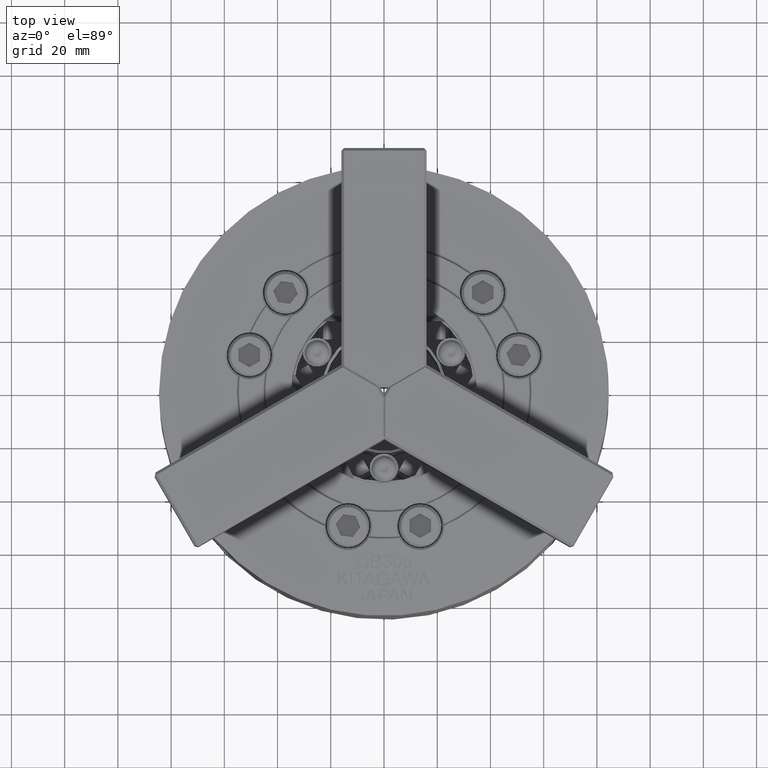
[diagram: clean part render]
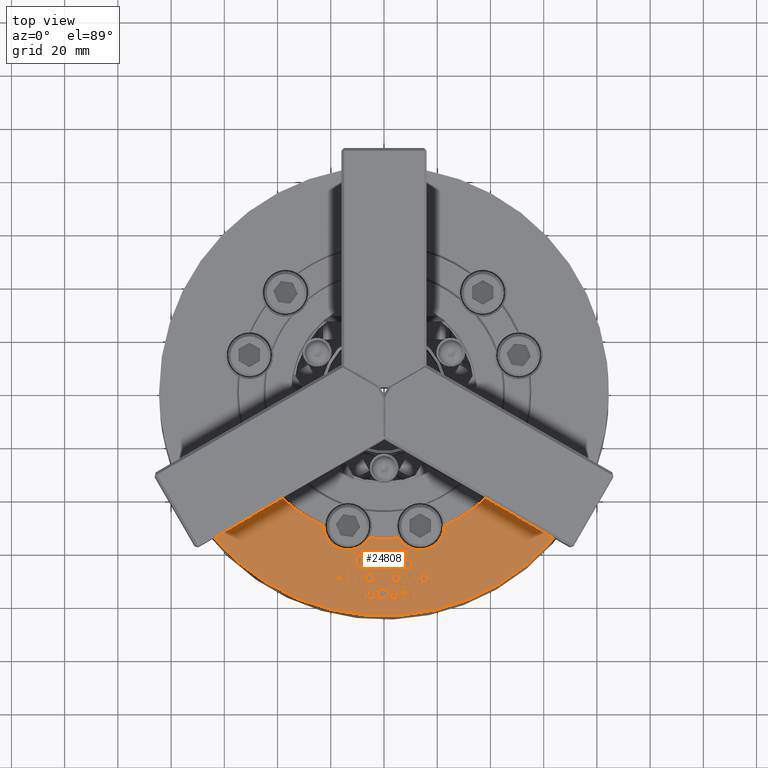
[diagram: same view with one face highlighted and labeled with its STEP entity id]
A machine part, top view. The second image highlights one B-rep face of the part: STEP entity #24808.
In plain terms, the highlighted planar face has unit normal (0, 0, -1).
Its self-contained STEP definition (entity closure, byte-faithful):
#518=B_SPLINE_CURVE_WITH_KNOTS('',3,(#36165,#36166,#36167,#36168,#36169,
#36170,#36171,#36172,#36173,#36174,#36175,#36176,#36177,#36178),
 .UNSPECIFIED.,.F.,.F.,(4,2,2,2,2,2,4),(0.,0.133876265744103,0.267752531488206,
0.401968018275169,0.631656377106477,0.861300146509091,1.),.UNSPECIFIED.);
#519=B_SPLINE_CURVE_WITH_KNOTS('',3,(#36193,#36194,#36195,#36196,#36197,
#36198),.UNSPECIFIED.,.F.,.F.,(4,2,4),(0.,0.654973357015985,1.),
 .UNSPECIFIED.);
#532=B_SPLINE_CURVE_WITH_KNOTS('',3,(#36523,#36524,#36525,#36526,#36527,
#36528),.UNSPECIFIED.,.F.,.F.,(4,2,4),(0.,0.113559950832137,1.),
 .UNSPECIFIED.);
#533=B_SPLINE_CURVE_WITH_KNOTS('',3,(#36549,#36550,#36551,#36552,#36553,
#36554),.UNSPECIFIED.,.F.,.F.,(4,2,4),(0.,0.799265446483559,1.),
 .UNSPECIFIED.);
#534=B_SPLINE_CURVE_WITH_KNOTS('',3,(#36579,#36580,#36581,#36582,#36583,
#36584),.UNSPECIFIED.,.F.,.F.,(4,2,4),(0.,0.276775881528682,1.),
 .UNSPECIFIED.);
#535=B_SPLINE_CURVE_WITH_KNOTS('',3,(#36599,#36600,#36601,#36602,#36603,
#36604),.UNSPECIFIED.,.F.,.F.,(4,2,4),(0.,0.573480761863728,1.),
 .UNSPECIFIED.);
#536=B_SPLINE_CURVE_WITH_KNOTS('',3,(#36639,#36640,#36641,#36642,#36643,
#36644),.UNSPECIFIED.,.F.,.F.,(4,2,4),(0.,0.0677872435588356,1.),
 .UNSPECIFIED.);
#537=B_SPLINE_CURVE_WITH_KNOTS('',3,(#36657,#36658,#36659,#36660,#36661,
#36662),.UNSPECIFIED.,.F.,.F.,(4,2,4),(0.,0.760232570822669,1.),
 .UNSPECIFIED.);
#545=B_SPLINE_CURVE_WITH_KNOTS('',3,(#36834,#36835,#36836,#36837,#36838,
#36839,#36840,#36841,#36842,#36843,#36844,#36845,#36846,#36847,#36848,#36849,
#36850,#36851,#36852,#36853,#36854,#36855,#36856,#36857,#36858,#36859),
 .UNSPECIFIED.,.F.,.F.,(4,2,2,2,2,2,2,2,2,2,2,2,4),(0.,0.0546908108123295,
0.109248937950563,0.2046511274819,0.299841767524087,0.362366450661717,0.424654636421189,
0.48694282218066,0.593418353393432,0.699685368120419,0.818704424614645,
0.922590067255488,1.),.UNSPECIFIED.);
#546=B_SPLINE_CURVE_WITH_KNOTS('',3,(#36880,#36881,#36882,#36883,#36884,
#36885,#36886,#36887,#36888,#36889),.UNSPECIFIED.,.F.,.F.,(4,2,2,2,4),(0.,
0.256866183763503,0.463711058057272,0.731313357317832,1.),.UNSPECIFIED.);
#547=B_SPLINE_CURVE_WITH_KNOTS('',3,(#36900,#36901,#36902,#36903),
 .UNSPECIFIED.,.F.,.F.,(4,4),(0.,1.),.UNSPECIFIED.);
#556=B_SPLINE_CURVE_WITH_KNOTS('',3,(#37116,#37117,#37118,#37119,#37120,
#37121,#37122,#37123,#37124,#37125,#37126,#37127,#37128,#37129),
 .UNSPECIFIED.,.F.,.F.,(4,2,2,2,2,2,4),(0.,0.191418336523223,0.382836673046445,
0.536475074729548,0.690902803641731,0.845982121201852,1.),.UNSPECIFIED.);
#558=B_SPLINE_CURVE_WITH_KNOTS('',3,(#37179,#37180,#37181,#37182,#37183,
#37184,#37185,#37186,#37187,#37188,#37189,#37190,#37191,#37192),
 .UNSPECIFIED.,.F.,.F.,(4,2,2,2,2,2,4),(0.,0.252000019580111,0.405570583659606,
0.559856839511895,0.714143095364184,0.857286454960475,1.),.UNSPECIFIED.);
#566=B_SPLINE_CURVE_WITH_KNOTS('',3,(#37355,#37356,#37357,#37358,#37359,
#37360,#37361,#37362,#37363,#37364,#37365,#37366,#37367,#37368,#37369,#37370),
 .UNSPECIFIED.,.F.,.F.,(4,2,2,2,2,2,2,4),(0.,0.122552443897333,0.245104887794665,
0.368161177129258,0.514111659828421,0.660218151503687,0.806790713600136,
1.),.UNSPECIFIED.);
#567=B_SPLINE_CURVE_WITH_KNOTS('',3,(#37395,#37396,#37397,#37398,#37399,
#37400,#37401,#37402,#37403,#37404,#37405,#37406),.UNSPECIFIED.,.F.,.F.,
(4,2,2,2,2,4),(0.,0.298354747322173,0.486147517435045,0.673342336576259,
0.86113743052837,1.),.UNSPECIFIED.);
#576=B_SPLINE_CURVE_WITH_KNOTS('',3,(#37570,#37571,#37572,#37573,#37574,
#37575,#37576,#37577,#37578,#37579,#37580,#37581,#37582,#37583,#37584,#37585,
#37586,#37587,#37588,#37589,#37590,#37591,#37592,#37593),.UNSPECIFIED.,
 .F.,.F.,(4,2,2,2,2,2,2,2,2,2,2,4),(0.,0.0912715639961158,0.183586231580758,
0.276041520673602,0.368496809766442,0.460713196303489,0.552811304529436,
0.64504694246137,0.737797863286779,0.830452170249193,0.923106477211607,
1.),.UNSPECIFIED.);
#577=B_SPLINE_CURVE_WITH_KNOTS('',3,(#37606,#37607,#37608,#37609),
 .UNSPECIFIED.,.F.,.F.,(4,4),(0.,1.),.UNSPECIFIED.);
#578=B_SPLINE_CURVE_WITH_KNOTS('',3,(#37624,#37625,#37626,#37627),
 .UNSPECIFIED.,.F.,.F.,(4,4),(0.,1.),.UNSPECIFIED.);
#584=B_SPLINE_CURVE_WITH_KNOTS('',3,(#37775,#37776,#37777,#37778,#37779,
#37780,#37781,#37782,#37783,#37784,#37785,#37786),.UNSPECIFIED.,.F.,.F.,
(4,2,2,2,2,4),(0.,0.168223571825499,0.336447143651005,0.564750562557045,
0.793512369235224,1.),.UNSPECIFIED.);
#585=B_SPLINE_CURVE_WITH_KNOTS('',3,(#37809,#37810,#37811,#37812,#37813,
#37814,#37815,#37816,#37817,#37818,#37819,#37820,#37821,#37822,#37823,#37824),
 .UNSPECIFIED.,.F.,.F.,(4,2,2,2,2,2,2,4),(0.,0.185789162647936,0.371578325295869,
0.500247842469519,0.628638723651331,0.756670374100232,0.878228514133173,
1.),.UNSPECIFIED.);
#586=B_SPLINE_CURVE_WITH_KNOTS('',3,(#37857,#37858,#37859,#37860,#37861,
#37862,#37863,#37864,#37865,#37866,#37867,#37868,#37869,#37870,#37871,#37872),
 .UNSPECIFIED.,.F.,.F.,(4,2,2,2,2,2,2,4),(0.,0.0186809894289742,0.209227081604508,
0.399488130848688,0.550325719438669,0.701163308028649,0.851198569019746,
1.),.UNSPECIFIED.);
#587=B_SPLINE_CURVE_WITH_KNOTS('',3,(#37899,#37900,#37901,#37902,#37903,
#37904,#37905,#37906,#37907,#37908,#37909,#37910,#37911,#37912,#37913,#37914),
 .UNSPECIFIED.,.F.,.F.,(4,2,2,2,2,2,2,4),(0.,0.142654155296301,0.284718050335549,
0.452070806271837,0.618354226474975,0.776719388573206,0.935084550671444,
1.),.UNSPECIFIED.);
#593=B_SPLINE_CURVE_WITH_KNOTS('',3,(#38255,#38256,#38257,#38258,#38259,
#38260,#38261,#38262,#38263,#38264,#38265,#38266,#38267,#38268,#38269,#38270,
#38271,#38272,#38273,#38274,#38275,#38276,#38277,#38278,#38279,#38280),
 .UNSPECIFIED.,.F.,.F.,(4,2,2,2,2,2,2,2,2,2,2,2,4),(0.,0.0482455712787823,
0.0966959830486939,0.145253793382743,0.203671057591725,0.261800626272898,
0.319930194954073,0.419017816841765,0.541647533291426,0.664277249741082,
0.78712022153639,0.893774584645495,1.),.UNSPECIFIED.);
#594=B_SPLINE_CURVE_WITH_KNOTS('',3,(#38311,#38312,#38313,#38314,#38315,
#38316,#38317,#38318,#38319,#38320,#38321,#38322,#38323,#38324,#38325,#38326,
#38327,#38328,#38329,#38330,#38331,#38332,#38333,#38334),.UNSPECIFIED.,
 .F.,.F.,(4,2,2,2,2,2,2,2,2,2,2,4),(0.,0.0771479720104567,0.154390811112291,
0.258831832996459,0.362875321877301,0.466918810758142,0.569878513296476,
0.672838215834807,0.77579791837314,0.850701763664524,0.925211018500278,
1.),.UNSPECIFIED.);
#598=B_SPLINE_CURVE_WITH_KNOTS('',3,(#38413,#38414,#38415,#38416,#38417,
#38418,#38419,#38420,#38421,#38422,#38423,#38424),.UNSPECIFIED.,.F.,.F.,
(4,2,2,2,2,4),(0.,0.377090906746179,0.515952085243925,0.654166703203385,
0.793343517767876,1.),.UNSPECIFIED.);
#599=B_SPLINE_CURVE_WITH_KNOTS('',3,(#38451,#38452,#38453,#38454,#38455,
#38456,#38457,#38458),.UNSPECIFIED.,.F.,.F.,(4,2,2,4),(0.,0.168093923954437,
0.334227915961159,1.),.UNSPECIFIED.);
#600=B_SPLINE_CURVE_WITH_KNOTS('',3,(#38471,#38472,#38473,#38474,#38475,
#38476,#38477,#38478),.UNSPECIFIED.,.F.,.F.,(4,2,2,4),(0.,0.365145228215781,
0.730290456431541,1.),.UNSPECIFIED.);
#1318=ELLIPSE('',#26145,117.13145021256,11.9889273459367);
#1320=ELLIPSE('',#26173,91.3672330741789,11.4240383032801);
#1322=ELLIPSE('',#26222,48.5648066790013,6.97595910027158);
#1439=LINE('',#35273,#3473);
#1638=LINE('',#35912,#3672);
#1641=LINE('',#35918,#3675);
#1643=LINE('',#35922,#3677);
#1645=LINE('',#35926,#3679);
#1647=LINE('',#35930,#3681);
#1649=LINE('',#35934,#3683);
#1651=LINE('',#35938,#3685);
#1653=LINE('',#35942,#3687);
#1655=LINE('',#35946,#3689);
#1657=LINE('',#35950,#3691);
#1671=LINE('',#36002,#3705);
#1674=LINE('',#36008,#3708);
#1676=LINE('',#36012,#3710);
#1678=LINE('',#36016,#3712);
#1680=LINE('',#36020,#3714);
#1682=LINE('',#36024,#3716);
#1684=LINE('',#36028,#3718);
#1686=LINE('',#36032,#3720);
#1696=LINE('',#36138,#3730);
#1701=LINE('',#36202,#3735);
#1703=LINE('',#36206,#3737);
#1718=LINE('',#36280,#3752);
#1721=LINE('',#36286,#3755);
#1723=LINE('',#36290,#3757);
#1725=LINE('',#36294,#3759);
#1727=LINE('',#36298,#3761);
#1729=LINE('',#36302,#3763);
#1731=LINE('',#36306,#3765);
#1733=LINE('',#36310,#3767);
#1749=LINE('',#36378,#3783);
#1752=LINE('',#36384,#3786);
#1754=LINE('',#36388,#3788);
#1756=LINE('',#36392,#3790);
#1758=LINE('',#36396,#3792);
#1760=LINE('',#36400,#3794);
#1762=LINE('',#36404,#3796);
#1764=LINE('',#36408,#3798);
#1771=LINE('',#36435,#3805);
#1774=LINE('',#36441,#3808);
#1776=LINE('',#36445,#3810);
#1778=LINE('',#36449,#3812);
#1789=LINE('',#36558,#3823);
#1791=LINE('',#36562,#3825);
#1793=LINE('',#36566,#3827);
#1797=LINE('',#36608,#3831);
#1801=LINE('',#36666,#3835);
#1803=LINE('',#36670,#3837);
#1805=LINE('',#36674,#3839);
#1813=LINE('',#36907,#3847);
#1827=LINE('',#37196,#3861);
#1829=LINE('',#37200,#3863);
#1842=LINE('',#37613,#3876);
#1852=LINE('',#37828,#3886);
#1855=LINE('',#37876,#3889);
#1858=LINE('',#37918,#3892);
#1868=LINE('',#37948,#3902);
#1871=LINE('',#37954,#3905);
#1873=LINE('',#37958,#3907);
#1875=LINE('',#37962,#3909);
#1877=LINE('',#37966,#3911);
#1879=LINE('',#37970,#3913);
#1881=LINE('',#37974,#3915);
#1883=LINE('',#37978,#3917);
#1896=LINE('',#38005,#3930);
#1899=LINE('',#38011,#3933);
#1901=LINE('',#38015,#3935);
#1903=LINE('',#38019,#3937);
#1905=LINE('',#38023,#3939);
#1907=LINE('',#38027,#3941);
#1909=LINE('',#38031,#3943);
#1911=LINE('',#38035,#3945);
#1913=LINE('',#38039,#3947);
#1915=LINE('',#38043,#3949);
#1917=LINE('',#38047,#3951);
#1919=LINE('',#38051,#3953);
#1933=LINE('',#38103,#3967);
#1936=LINE('',#38109,#3970);
#1938=LINE('',#38113,#3972);
#1940=LINE('',#38117,#3974);
#1942=LINE('',#38121,#3976);
#1944=LINE('',#38125,#3978);
#1946=LINE('',#38129,#3980);
#1948=LINE('',#38133,#3982);
#1957=LINE('',#38216,#3991);
#1961=LINE('',#38284,#3995);
#1964=LINE('',#38338,#3998);
#1966=LINE('',#38342,#4000);
#1968=LINE('',#38346,#4002);
#1970=LINE('',#38350,#4004);
#1975=LINE('',#38430,#4009);
#1979=LINE('',#38482,#4013);
#1994=LINE('',#38545,#4028);
#1997=LINE('',#38551,#4031);
#1999=LINE('',#38555,#4033);
#2001=LINE('',#38559,#4035);
#2003=LINE('',#38563,#4037);
#2005=LINE('',#38567,#4039);
#2007=LINE('',#38571,#4041);
#2009=LINE('',#38575,#4043);
#2106=LINE('',#40546,#4140);
#3473=VECTOR('',#28408,1000.);
#3672=VECTOR('',#28875,1000.);
#3675=VECTOR('',#28880,1000.);
#3677=VECTOR('',#28884,1000.);
#3679=VECTOR('',#28888,1000.);
#3681=VECTOR('',#28892,1000.);
#3683=VECTOR('',#28896,1000.);
#3685=VECTOR('',#28900,1000.);
#3687=VECTOR('',#28904,1000.);
#3689=VECTOR('',#28908,1000.);
#3691=VECTOR('',#28912,1000.);
#3705=VECTOR('',#28938,1000.);
#3708=VECTOR('',#28943,1000.);
#3710=VECTOR('',#28947,1000.);
#3712=VECTOR('',#28951,1000.);
#3714=VECTOR('',#28955,1000.);
#3716=VECTOR('',#28959,1000.);
#3718=VECTOR('',#28963,1000.);
#3720=VECTOR('',#28967,1000.);
#3730=VECTOR('',#28987,1000.);
#3735=VECTOR('',#28994,1000.);
#3737=VECTOR('',#28998,1000.);
#3752=VECTOR('',#29027,1000.);
#3755=VECTOR('',#29032,1000.);
#3757=VECTOR('',#29036,1000.);
#3759=VECTOR('',#29040,1000.);
#3761=VECTOR('',#29044,1000.);
#3763=VECTOR('',#29048,1000.);
#3765=VECTOR('',#29052,1000.);
#3767=VECTOR('',#29056,1000.);
#3783=VECTOR('',#29088,1000.);
#3786=VECTOR('',#29093,1000.);
#3788=VECTOR('',#29097,1000.);
#3790=VECTOR('',#29101,1000.);
#3792=VECTOR('',#29105,1000.);
#3794=VECTOR('',#29109,1000.);
#3796=VECTOR('',#29113,1000.);
#3798=VECTOR('',#29117,1000.);
#3805=VECTOR('',#29132,1000.);
#3808=VECTOR('',#29137,1000.);
#3810=VECTOR('',#29141,1000.);
#3812=VECTOR('',#29145,1000.);
#3823=VECTOR('',#29160,1000.);
#3825=VECTOR('',#29164,1000.);
#3827=VECTOR('',#29168,1000.);
#3831=VECTOR('',#29174,1000.);
#3835=VECTOR('',#29180,1000.);
#3837=VECTOR('',#29184,1000.);
#3839=VECTOR('',#29188,1000.);
#3847=VECTOR('',#29204,1000.);
#3861=VECTOR('',#29232,1000.);
#3863=VECTOR('',#29236,1000.);
#3876=VECTOR('',#29273,1000.);
#3886=VECTOR('',#29295,1000.);
#3889=VECTOR('',#29300,1000.);
#3892=VECTOR('',#29305,1000.);
#3902=VECTOR('',#29321,1000.);
#3905=VECTOR('',#29326,1000.);
#3907=VECTOR('',#29330,1000.);
#3909=VECTOR('',#29334,1000.);
#3911=VECTOR('',#29338,1000.);
#3913=VECTOR('',#29342,1000.);
#3915=VECTOR('',#29346,1000.);
#3917=VECTOR('',#29350,1000.);
#3930=VECTOR('',#29367,1000.);
#3933=VECTOR('',#29372,1000.);
#3935=VECTOR('',#29376,1000.);
#3937=VECTOR('',#29380,1000.);
#3939=VECTOR('',#29384,1000.);
#3941=VECTOR('',#29388,1000.);
#3943=VECTOR('',#29392,1000.);
#3945=VECTOR('',#29396,1000.);
#3947=VECTOR('',#29400,1000.);
#3949=VECTOR('',#29404,1000.);
#3951=VECTOR('',#29408,1000.);
#3953=VECTOR('',#29412,1000.);
#3967=VECTOR('',#29438,1000.);
#3970=VECTOR('',#29443,1000.);
#3972=VECTOR('',#29447,1000.);
#3974=VECTOR('',#29451,1000.);
#3976=VECTOR('',#29455,1000.);
#3978=VECTOR('',#29459,1000.);
#3980=VECTOR('',#29463,1000.);
#3982=VECTOR('',#29467,1000.);
#3991=VECTOR('',#29484,1000.);
#3995=VECTOR('',#29490,1000.);
#3998=VECTOR('',#29495,1000.);
#4000=VECTOR('',#29499,1000.);
#4002=VECTOR('',#29503,1000.);
#4004=VECTOR('',#29507,1000.);
#4009=VECTOR('',#29518,1000.);
#4013=VECTOR('',#29524,1000.);
#4028=VECTOR('',#29553,1000.);
#4031=VECTOR('',#29558,1000.);
#4033=VECTOR('',#29562,1000.);
#4035=VECTOR('',#29566,1000.);
#4037=VECTOR('',#29570,1000.);
#4039=VECTOR('',#29574,1000.);
#4041=VECTOR('',#29578,1000.);
#4043=VECTOR('',#29582,1000.);
#4140=VECTOR('',#29883,1000.);
#7855=ORIENTED_EDGE('',*,*,#13032,.T.);
#7856=ORIENTED_EDGE('',*,*,#13030,.T.);
#7857=ORIENTED_EDGE('',*,*,#13028,.T.);
#7858=ORIENTED_EDGE('',*,*,#13026,.T.);
#7859=ORIENTED_EDGE('',*,*,#13024,.T.);
#7860=ORIENTED_EDGE('',*,*,#13022,.T.);
#7861=ORIENTED_EDGE('',*,*,#13020,.T.);
#7862=ORIENTED_EDGE('',*,*,#13018,.T.);
#7863=ORIENTED_EDGE('',*,*,#13016,.T.);
#7864=ORIENTED_EDGE('',*,*,#13013,.T.);
#7865=ORIENTED_EDGE('',*,*,#13091,.T.);
#7866=ORIENTED_EDGE('',*,*,#13089,.T.);
#7867=ORIENTED_EDGE('',*,*,#13087,.T.);
#7868=ORIENTED_EDGE('',*,*,#13085,.T.);
#7869=ORIENTED_EDGE('',*,*,#13082,.T.);
#7870=ORIENTED_EDGE('',*,*,#13162,.T.);
#7871=ORIENTED_EDGE('',*,*,#13160,.T.);
#7872=ORIENTED_EDGE('',*,*,#13158,.T.);
#7873=ORIENTED_EDGE('',*,*,#13156,.T.);
#7874=ORIENTED_EDGE('',*,*,#13154,.T.);
#7875=ORIENTED_EDGE('',*,*,#13152,.T.);
#7876=ORIENTED_EDGE('',*,*,#13150,.T.);
#7877=ORIENTED_EDGE('',*,*,#13147,.T.);
#7878=ORIENTED_EDGE('',*,*,#13215,.T.);
#7879=ORIENTED_EDGE('',*,*,#13213,.T.);
#7880=ORIENTED_EDGE('',*,*,#13211,.T.);
#7881=ORIENTED_EDGE('',*,*,#13209,.T.);
#7882=ORIENTED_EDGE('',*,*,#13207,.T.);
#7883=ORIENTED_EDGE('',*,*,#13205,.T.);
#7884=ORIENTED_EDGE('',*,*,#13203,.T.);
#7885=ORIENTED_EDGE('',*,*,#13201,.T.);
#7886=ORIENTED_EDGE('',*,*,#13199,.T.);
#7887=ORIENTED_EDGE('',*,*,#13197,.T.);
#7888=ORIENTED_EDGE('',*,*,#13195,.T.);
#7889=ORIENTED_EDGE('',*,*,#13193,.T.);
#7890=ORIENTED_EDGE('',*,*,#13190,.T.);
#7891=ORIENTED_EDGE('',*,*,#13264,.T.);
#7892=ORIENTED_EDGE('',*,*,#13262,.T.);
#7893=ORIENTED_EDGE('',*,*,#13260,.T.);
#7894=ORIENTED_EDGE('',*,*,#13255,.T.);
#7895=ORIENTED_EDGE('',*,*,#13303,.T.);
#7896=ORIENTED_EDGE('',*,*,#13301,.T.);
#7897=ORIENTED_EDGE('',*,*,#13299,.T.);
#7898=ORIENTED_EDGE('',*,*,#13297,.T.);
#7899=ORIENTED_EDGE('',*,*,#13294,.T.);
#7900=ORIENTED_EDGE('',*,*,#13353,.T.);
#7901=ORIENTED_EDGE('',*,*,#13351,.T.);
#7902=ORIENTED_EDGE('',*,*,#13349,.T.);
#7903=ORIENTED_EDGE('',*,*,#13347,.T.);
#7904=ORIENTED_EDGE('',*,*,#13345,.T.);
#7905=ORIENTED_EDGE('',*,*,#13343,.T.);
#7906=ORIENTED_EDGE('',*,*,#13341,.T.);
#7907=ORIENTED_EDGE('',*,*,#13338,.T.);
#7908=ORIENTED_EDGE('',*,*,#13423,.T.);
#7909=ORIENTED_EDGE('',*,*,#13421,.T.);
#7910=ORIENTED_EDGE('',*,*,#13419,.T.);
#7911=ORIENTED_EDGE('',*,*,#13417,.T.);
#7912=ORIENTED_EDGE('',*,*,#13415,.T.);
#7913=ORIENTED_EDGE('',*,*,#13413,.T.);
#7914=ORIENTED_EDGE('',*,*,#13411,.T.);
#7915=ORIENTED_EDGE('',*,*,#13408,.T.);
#7916=ORIENTED_EDGE('',*,*,#13467,.T.);
#7917=ORIENTED_EDGE('',*,*,#13465,.T.);
#7918=ORIENTED_EDGE('',*,*,#13463,.T.);
#7919=ORIENTED_EDGE('',*,*,#13461,.T.);
#7920=ORIENTED_EDGE('',*,*,#13459,.T.);
#7921=ORIENTED_EDGE('',*,*,#13456,.T.);
#7922=ORIENTED_EDGE('',*,*,#12711,.T.);
#7923=ORIENTED_EDGE('',*,*,#14026,.T.);
#7924=ORIENTED_EDGE('',*,*,#13915,.T.);
#7925=ORIENTED_EDGE('',*,*,#13964,.T.);
#7926=ORIENTED_EDGE('',*,*,#13899,.T.);
#7927=ORIENTED_EDGE('',*,*,#14001,.T.);
#7928=ORIENTED_EDGE('',*,*,#13668,.F.);
#7929=ORIENTED_EDGE('',*,*,#14036,.F.);
#7930=ORIENTED_EDGE('',*,*,#13501,.T.);
#7931=ORIENTED_EDGE('',*,*,#13499,.T.);
#7932=ORIENTED_EDGE('',*,*,#13497,.T.);
#7933=ORIENTED_EDGE('',*,*,#13495,.T.);
#7934=ORIENTED_EDGE('',*,*,#13493,.T.);
#7935=ORIENTED_EDGE('',*,*,#13491,.T.);
#7936=ORIENTED_EDGE('',*,*,#13489,.T.);
#7937=ORIENTED_EDGE('',*,*,#13486,.T.);
#7938=ORIENTED_EDGE('',*,*,#13449,.T.);
#7939=ORIENTED_EDGE('',*,*,#13447,.T.);
#7940=ORIENTED_EDGE('',*,*,#13445,.T.);
#7941=ORIENTED_EDGE('',*,*,#13443,.T.);
#7942=ORIENTED_EDGE('',*,*,#13441,.T.);
#7943=ORIENTED_EDGE('',*,*,#13439,.T.);
#7944=ORIENTED_EDGE('',*,*,#13437,.T.);
#7945=ORIENTED_EDGE('',*,*,#13434,.T.);
#7946=ORIENTED_EDGE('',*,*,#13389,.T.);
#7947=ORIENTED_EDGE('',*,*,#13387,.T.);
#7948=ORIENTED_EDGE('',*,*,#13385,.T.);
#7949=ORIENTED_EDGE('',*,*,#13383,.T.);
#7950=ORIENTED_EDGE('',*,*,#13381,.T.);
#7951=ORIENTED_EDGE('',*,*,#13379,.T.);
#7952=ORIENTED_EDGE('',*,*,#13377,.T.);
#7953=ORIENTED_EDGE('',*,*,#13375,.T.);
#7954=ORIENTED_EDGE('',*,*,#13373,.T.);
#7955=ORIENTED_EDGE('',*,*,#13371,.T.);
#7956=ORIENTED_EDGE('',*,*,#13369,.T.);
#7957=ORIENTED_EDGE('',*,*,#13366,.T.);
#7958=ORIENTED_EDGE('',*,*,#13329,.T.);
#7959=ORIENTED_EDGE('',*,*,#13327,.T.);
#7960=ORIENTED_EDGE('',*,*,#13325,.T.);
#7961=ORIENTED_EDGE('',*,*,#13323,.T.);
#7962=ORIENTED_EDGE('',*,*,#13321,.T.);
#7963=ORIENTED_EDGE('',*,*,#13319,.T.);
#7964=ORIENTED_EDGE('',*,*,#13317,.T.);
#7965=ORIENTED_EDGE('',*,*,#13314,.T.);
#7966=ORIENTED_EDGE('',*,*,#13278,.T.);
#7967=ORIENTED_EDGE('',*,*,#13275,.T.);
#7968=ORIENTED_EDGE('',*,*,#13236,.T.);
#7969=ORIENTED_EDGE('',*,*,#13234,.T.);
#7970=ORIENTED_EDGE('',*,*,#13232,.T.);
#7971=ORIENTED_EDGE('',*,*,#13230,.T.);
#7972=ORIENTED_EDGE('',*,*,#13227,.T.);
#7973=ORIENTED_EDGE('',*,*,#13176,.T.);
#7974=ORIENTED_EDGE('',*,*,#13174,.T.);
#7975=ORIENTED_EDGE('',*,*,#13172,.T.);
#7976=ORIENTED_EDGE('',*,*,#13169,.T.);
#7977=ORIENTED_EDGE('',*,*,#13126,.T.);
#7978=ORIENTED_EDGE('',*,*,#13124,.T.);
#7979=ORIENTED_EDGE('',*,*,#13122,.T.);
#7980=ORIENTED_EDGE('',*,*,#13120,.T.);
#7981=ORIENTED_EDGE('',*,*,#13118,.T.);
#7982=ORIENTED_EDGE('',*,*,#13116,.T.);
#7983=ORIENTED_EDGE('',*,*,#13114,.T.);
#7984=ORIENTED_EDGE('',*,*,#13111,.T.);
#7985=ORIENTED_EDGE('',*,*,#13066,.T.);
#7986=ORIENTED_EDGE('',*,*,#13064,.T.);
#7987=ORIENTED_EDGE('',*,*,#13062,.T.);
#7988=ORIENTED_EDGE('',*,*,#13060,.T.);
#7989=ORIENTED_EDGE('',*,*,#13058,.T.);
#7990=ORIENTED_EDGE('',*,*,#13056,.T.);
#7991=ORIENTED_EDGE('',*,*,#13054,.T.);
#7992=ORIENTED_EDGE('',*,*,#13051,.T.);
#12711=EDGE_CURVE('',#16309,#16308,#1439,.T.);
#13013=EDGE_CURVE('',#16567,#16568,#1638,.T.);
#13016=EDGE_CURVE('',#16569,#16567,#1641,.T.);
#13018=EDGE_CURVE('',#16570,#16569,#1643,.T.);
#13020=EDGE_CURVE('',#16571,#16570,#1645,.T.);
#13022=EDGE_CURVE('',#16572,#16571,#1647,.T.);
#13024=EDGE_CURVE('',#16573,#16572,#1649,.T.);
#13026=EDGE_CURVE('',#16574,#16573,#1651,.T.);
#13028=EDGE_CURVE('',#16575,#16574,#1653,.T.);
#13030=EDGE_CURVE('',#16576,#16575,#1655,.T.);
#13032=EDGE_CURVE('',#16568,#16576,#1657,.T.);
#13051=EDGE_CURVE('',#16593,#16594,#1671,.T.);
#13054=EDGE_CURVE('',#16595,#16593,#1674,.T.);
#13056=EDGE_CURVE('',#16596,#16595,#1676,.T.);
#13058=EDGE_CURVE('',#16597,#16596,#1678,.T.);
#13060=EDGE_CURVE('',#16598,#16597,#1680,.T.);
#13062=EDGE_CURVE('',#16599,#16598,#1682,.T.);
#13064=EDGE_CURVE('',#16600,#16599,#1684,.T.);
#13066=EDGE_CURVE('',#16594,#16600,#1686,.T.);
#13082=EDGE_CURVE('',#16612,#16613,#1696,.T.);
#13085=EDGE_CURVE('',#16614,#16612,#518,.T.);
#13087=EDGE_CURVE('',#16615,#16614,#519,.T.);
#13089=EDGE_CURVE('',#16616,#16615,#1701,.T.);
#13091=EDGE_CURVE('',#16613,#16616,#1703,.T.);
#13111=EDGE_CURVE('',#16633,#16634,#1718,.T.);
#13114=EDGE_CURVE('',#16635,#16633,#1721,.T.);
#13116=EDGE_CURVE('',#16636,#16635,#1723,.T.);
#13118=EDGE_CURVE('',#16637,#16636,#1725,.T.);
#13120=EDGE_CURVE('',#16638,#16637,#1727,.T.);
#13122=EDGE_CURVE('',#16639,#16638,#1729,.T.);
#13124=EDGE_CURVE('',#16640,#16639,#1731,.T.);
#13126=EDGE_CURVE('',#16634,#16640,#1733,.T.);
#13147=EDGE_CURVE('',#16657,#16658,#1749,.T.);
#13150=EDGE_CURVE('',#16659,#16657,#1752,.T.);
#13152=EDGE_CURVE('',#16660,#16659,#1754,.T.);
#13154=EDGE_CURVE('',#16661,#16660,#1756,.T.);
#13156=EDGE_CURVE('',#16662,#16661,#1758,.T.);
#13158=EDGE_CURVE('',#16663,#16662,#1760,.T.);
#13160=EDGE_CURVE('',#16664,#16663,#1762,.T.);
#13162=EDGE_CURVE('',#16658,#16664,#1764,.T.);
#13169=EDGE_CURVE('',#16669,#16670,#1771,.T.);
#13172=EDGE_CURVE('',#16671,#16669,#1774,.T.);
#13174=EDGE_CURVE('',#16672,#16671,#1776,.T.);
#13176=EDGE_CURVE('',#16670,#16672,#1778,.T.);
#13190=EDGE_CURVE('',#16686,#16687,#532,.T.);
#13193=EDGE_CURVE('',#16688,#16686,#533,.T.);
#13195=EDGE_CURVE('',#16689,#16688,#1789,.T.);
#13197=EDGE_CURVE('',#16690,#16689,#1791,.T.);
#13199=EDGE_CURVE('',#16691,#16690,#1793,.T.);
#13201=EDGE_CURVE('',#16692,#16691,#534,.T.);
#13203=EDGE_CURVE('',#16693,#16692,#535,.T.);
#13205=EDGE_CURVE('',#16694,#16693,#1797,.T.);
#13207=EDGE_CURVE('',#16695,#16694,#536,.T.);
#13209=EDGE_CURVE('',#16696,#16695,#537,.T.);
#13211=EDGE_CURVE('',#16697,#16696,#1801,.T.);
#13213=EDGE_CURVE('',#16698,#16697,#1803,.T.);
#13215=EDGE_CURVE('',#16687,#16698,#1805,.T.);
#13227=EDGE_CURVE('',#16708,#16709,#545,.T.);
#13230=EDGE_CURVE('',#16710,#16708,#546,.T.);
#13232=EDGE_CURVE('',#16711,#16710,#547,.T.);
#13234=EDGE_CURVE('',#16712,#16711,#1813,.T.);
#13236=EDGE_CURVE('',#16709,#16712,#1318,.T.);
#13255=EDGE_CURVE('',#16729,#16730,#556,.T.);
#13260=EDGE_CURVE('',#16731,#16729,#558,.T.);
#13262=EDGE_CURVE('',#16732,#16731,#1827,.T.);
#13264=EDGE_CURVE('',#16730,#16732,#1829,.T.);
#13275=EDGE_CURVE('',#16739,#16740,#566,.T.);
#13278=EDGE_CURVE('',#16740,#16739,#567,.T.);
#13294=EDGE_CURVE('',#16754,#16755,#576,.T.);
#13297=EDGE_CURVE('',#16756,#16754,#577,.T.);
#13299=EDGE_CURVE('',#16757,#16756,#1842,.T.);
#13301=EDGE_CURVE('',#16758,#16757,#578,.T.);
#13303=EDGE_CURVE('',#16755,#16758,#18825,.T.);
#13314=EDGE_CURVE('',#16767,#16768,#584,.T.);
#13317=EDGE_CURVE('',#16769,#16767,#585,.T.);
#13319=EDGE_CURVE('',#16770,#16769,#1852,.T.);
#13321=EDGE_CURVE('',#16771,#16770,#586,.T.);
#13323=EDGE_CURVE('',#16772,#16771,#1855,.T.);
#13325=EDGE_CURVE('',#16773,#16772,#587,.T.);
#13327=EDGE_CURVE('',#16774,#16773,#1858,.T.);
#13329=EDGE_CURVE('',#16768,#16774,#1320,.T.);
#13338=EDGE_CURVE('',#16783,#16784,#1868,.T.);
#13341=EDGE_CURVE('',#16785,#16783,#1871,.T.);
#13343=EDGE_CURVE('',#16786,#16785,#1873,.T.);
#13345=EDGE_CURVE('',#16787,#16786,#1875,.T.);
#13347=EDGE_CURVE('',#16788,#16787,#1877,.T.);
#13349=EDGE_CURVE('',#16789,#16788,#1879,.T.);
#13351=EDGE_CURVE('',#16790,#16789,#1881,.T.);
#13353=EDGE_CURVE('',#16784,#16790,#1883,.T.);
#13366=EDGE_CURVE('',#16803,#16804,#1896,.T.);
#13369=EDGE_CURVE('',#16805,#16803,#1899,.T.);
#13371=EDGE_CURVE('',#16806,#16805,#1901,.T.);
#13373=EDGE_CURVE('',#16807,#16806,#1903,.T.);
#13375=EDGE_CURVE('',#16808,#16807,#1905,.T.);
#13377=EDGE_CURVE('',#16809,#16808,#1907,.T.);
#13379=EDGE_CURVE('',#16810,#16809,#1909,.T.);
#13381=EDGE_CURVE('',#16811,#16810,#1911,.T.);
#13383=EDGE_CURVE('',#16812,#16811,#1913,.T.);
#13385=EDGE_CURVE('',#16813,#16812,#1915,.T.);
#13387=EDGE_CURVE('',#16814,#16813,#1917,.T.);
#13389=EDGE_CURVE('',#16804,#16814,#1919,.T.);
#13408=EDGE_CURVE('',#16831,#16832,#1933,.T.);
#13411=EDGE_CURVE('',#16833,#16831,#1936,.T.);
#13413=EDGE_CURVE('',#16834,#16833,#1938,.T.);
#13415=EDGE_CURVE('',#16835,#16834,#1940,.T.);
#13417=EDGE_CURVE('',#16836,#16835,#1942,.T.);
#13419=EDGE_CURVE('',#16837,#16836,#1944,.T.);
#13421=EDGE_CURVE('',#16838,#16837,#1946,.T.);
#13423=EDGE_CURVE('',#16832,#16838,#1948,.T.);
#13434=EDGE_CURVE('',#16847,#16848,#1957,.T.);
#13437=EDGE_CURVE('',#16849,#16847,#593,.T.);
#13439=EDGE_CURVE('',#16850,#16849,#1961,.T.);
#13441=EDGE_CURVE('',#16851,#16850,#594,.T.);
#13443=EDGE_CURVE('',#16852,#16851,#1964,.T.);
#13445=EDGE_CURVE('',#16853,#16852,#1966,.T.);
#13447=EDGE_CURVE('',#16854,#16853,#1968,.T.);
#13449=EDGE_CURVE('',#16848,#16854,#1970,.T.);
#13456=EDGE_CURVE('',#16861,#16862,#598,.T.);
#13459=EDGE_CURVE('',#16863,#16861,#1975,.T.);
#13461=EDGE_CURVE('',#16864,#16863,#599,.T.);
#13463=EDGE_CURVE('',#16865,#16864,#600,.T.);
#13465=EDGE_CURVE('',#16866,#16865,#1979,.T.);
#13467=EDGE_CURVE('',#16862,#16866,#1322,.T.);
#13486=EDGE_CURVE('',#16883,#16884,#1994,.T.);
#13489=EDGE_CURVE('',#16885,#16883,#1997,.T.);
#13491=EDGE_CURVE('',#16886,#16885,#1999,.T.);
#13493=EDGE_CURVE('',#16887,#16886,#2001,.T.);
#13495=EDGE_CURVE('',#16888,#16887,#2003,.T.);
#13497=EDGE_CURVE('',#16889,#16888,#2005,.T.);
#13499=EDGE_CURVE('',#16890,#16889,#2007,.T.);
#13501=EDGE_CURVE('',#16884,#16890,#2009,.T.);
#13668=EDGE_CURVE('',#17017,#17018,#2106,.T.);
#13899=EDGE_CURVE('',#17183,#17185,#18969,.T.);
#13915=EDGE_CURVE('',#17199,#17201,#18977,.T.);
#13964=EDGE_CURVE('',#17201,#17183,#19000,.T.);
#14001=EDGE_CURVE('',#17185,#17018,#19035,.T.);
#14026=EDGE_CURVE('',#16308,#17199,#19056,.T.);
#14036=EDGE_CURVE('',#16309,#17017,#19066,.T.);
#16308=VERTEX_POINT('',#35272);
#16309=VERTEX_POINT('',#35274);
#16567=VERTEX_POINT('',#35913);
#16568=VERTEX_POINT('',#35914);
#16569=VERTEX_POINT('',#35919);
#16570=VERTEX_POINT('',#35923);
#16571=VERTEX_POINT('',#35927);
#16572=VERTEX_POINT('',#35931);
#16573=VERTEX_POINT('',#35935);
#16574=VERTEX_POINT('',#35939);
#16575=VERTEX_POINT('',#35943);
#16576=VERTEX_POINT('',#35947);
#16593=VERTEX_POINT('',#36003);
#16594=VERTEX_POINT('',#36004);
#16595=VERTEX_POINT('',#36009);
#16596=VERTEX_POINT('',#36013);
#16597=VERTEX_POINT('',#36017);
#16598=VERTEX_POINT('',#36021);
#16599=VERTEX_POINT('',#36025);
#16600=VERTEX_POINT('',#36029);
#16612=VERTEX_POINT('',#36139);
#16613=VERTEX_POINT('',#36140);
#16614=VERTEX_POINT('',#36179);
#16615=VERTEX_POINT('',#36199);
#16616=VERTEX_POINT('',#36203);
#16633=VERTEX_POINT('',#36281);
#16634=VERTEX_POINT('',#36282);
#16635=VERTEX_POINT('',#36287);
#16636=VERTEX_POINT('',#36291);
#16637=VERTEX_POINT('',#36295);
#16638=VERTEX_POINT('',#36299);
#16639=VERTEX_POINT('',#36303);
#16640=VERTEX_POINT('',#36307);
#16657=VERTEX_POINT('',#36379);
#16658=VERTEX_POINT('',#36380);
#16659=VERTEX_POINT('',#36385);
#16660=VERTEX_POINT('',#36389);
#16661=VERTEX_POINT('',#36393);
#16662=VERTEX_POINT('',#36397);
#16663=VERTEX_POINT('',#36401);
#16664=VERTEX_POINT('',#36405);
#16669=VERTEX_POINT('',#36436);
#16670=VERTEX_POINT('',#36437);
#16671=VERTEX_POINT('',#36442);
#16672=VERTEX_POINT('',#36446);
#16686=VERTEX_POINT('',#36529);
#16687=VERTEX_POINT('',#36530);
#16688=VERTEX_POINT('',#36555);
#16689=VERTEX_POINT('',#36559);
#16690=VERTEX_POINT('',#36563);
#16691=VERTEX_POINT('',#36567);
#16692=VERTEX_POINT('',#36585);
#16693=VERTEX_POINT('',#36605);
#16694=VERTEX_POINT('',#36609);
#16695=VERTEX_POINT('',#36645);
#16696=VERTEX_POINT('',#36663);
#16697=VERTEX_POINT('',#36667);
#16698=VERTEX_POINT('',#36671);
#16708=VERTEX_POINT('',#36860);
#16709=VERTEX_POINT('',#36861);
#16710=VERTEX_POINT('',#36890);
#16711=VERTEX_POINT('',#36904);
#16712=VERTEX_POINT('',#36908);
#16729=VERTEX_POINT('',#37130);
#16730=VERTEX_POINT('',#37131);
#16731=VERTEX_POINT('',#37193);
#16732=VERTEX_POINT('',#37197);
#16739=VERTEX_POINT('',#37371);
#16740=VERTEX_POINT('',#37372);
#16754=VERTEX_POINT('',#37594);
#16755=VERTEX_POINT('',#37595);
#16756=VERTEX_POINT('',#37610);
#16757=VERTEX_POINT('',#37614);
#16758=VERTEX_POINT('',#37628);
#16767=VERTEX_POINT('',#37787);
#16768=VERTEX_POINT('',#37788);
#16769=VERTEX_POINT('',#37825);
#16770=VERTEX_POINT('',#37829);
#16771=VERTEX_POINT('',#37873);
#16772=VERTEX_POINT('',#37877);
#16773=VERTEX_POINT('',#37915);
#16774=VERTEX_POINT('',#37919);
#16783=VERTEX_POINT('',#37949);
#16784=VERTEX_POINT('',#37950);
#16785=VERTEX_POINT('',#37955);
#16786=VERTEX_POINT('',#37959);
#16787=VERTEX_POINT('',#37963);
#16788=VERTEX_POINT('',#37967);
#16789=VERTEX_POINT('',#37971);
#16790=VERTEX_POINT('',#37975);
#16803=VERTEX_POINT('',#38006);
#16804=VERTEX_POINT('',#38007);
#16805=VERTEX_POINT('',#38012);
#16806=VERTEX_POINT('',#38016);
#16807=VERTEX_POINT('',#38020);
#16808=VERTEX_POINT('',#38024);
#16809=VERTEX_POINT('',#38028);
#16810=VERTEX_POINT('',#38032);
#16811=VERTEX_POINT('',#38036);
#16812=VERTEX_POINT('',#38040);
#16813=VERTEX_POINT('',#38044);
#16814=VERTEX_POINT('',#38048);
#16831=VERTEX_POINT('',#38104);
#16832=VERTEX_POINT('',#38105);
#16833=VERTEX_POINT('',#38110);
#16834=VERTEX_POINT('',#38114);
#16835=VERTEX_POINT('',#38118);
#16836=VERTEX_POINT('',#38122);
#16837=VERTEX_POINT('',#38126);
#16838=VERTEX_POINT('',#38130);
#16847=VERTEX_POINT('',#38217);
#16848=VERTEX_POINT('',#38218);
#16849=VERTEX_POINT('',#38281);
#16850=VERTEX_POINT('',#38285);
#16851=VERTEX_POINT('',#38335);
#16852=VERTEX_POINT('',#38339);
#16853=VERTEX_POINT('',#38343);
#16854=VERTEX_POINT('',#38347);
#16861=VERTEX_POINT('',#38425);
#16862=VERTEX_POINT('',#38426);
#16863=VERTEX_POINT('',#38431);
#16864=VERTEX_POINT('',#38459);
#16865=VERTEX_POINT('',#38479);
#16866=VERTEX_POINT('',#38483);
#16883=VERTEX_POINT('',#38546);
#16884=VERTEX_POINT('',#38547);
#16885=VERTEX_POINT('',#38552);
#16886=VERTEX_POINT('',#38556);
#16887=VERTEX_POINT('',#38560);
#16888=VERTEX_POINT('',#38564);
#16889=VERTEX_POINT('',#38568);
#16890=VERTEX_POINT('',#38572);
#17017=VERTEX_POINT('',#40545);
#17018=VERTEX_POINT('',#40547);
#17183=VERTEX_POINT('',#41250);
#17185=VERTEX_POINT('',#41257);
#17199=VERTEX_POINT('',#41310);
#17201=VERTEX_POINT('',#41317);
#18825=CIRCLE('',#26166,2.27823768076545);
#18969=CIRCLE('',#26499,9.1);
#18977=CIRCLE('',#26511,9.1);
#19000=CIRCLE('',#26549,55.4);
#19035=CIRCLE('',#26612,55.4);
#19056=CIRCLE('',#26652,55.4);
#19066=CIRCLE('',#26669,84.5);
#20196=EDGE_LOOP('',(#7855,#7856,#7857,#7858,#7859,#7860,#7861,#7862,#7863,
#7864));
#20197=EDGE_LOOP('',(#7865,#7866,#7867,#7868,#7869));
#20198=EDGE_LOOP('',(#7870,#7871,#7872,#7873,#7874,#7875,#7876,#7877));
#20199=EDGE_LOOP('',(#7878,#7879,#7880,#7881,#7882,#7883,#7884,#7885,#7886,
#7887,#7888,#7889,#7890));
#20200=EDGE_LOOP('',(#7891,#7892,#7893,#7894));
#20201=EDGE_LOOP('',(#7895,#7896,#7897,#7898,#7899));
#20202=EDGE_LOOP('',(#7900,#7901,#7902,#7903,#7904,#7905,#7906,#7907));
#20203=EDGE_LOOP('',(#7908,#7909,#7910,#7911,#7912,#7913,#7914,#7915));
#20204=EDGE_LOOP('',(#7916,#7917,#7918,#7919,#7920,#7921));
#20205=EDGE_LOOP('',(#7922,#7923,#7924,#7925,#7926,#7927,#7928,#7929));
#20206=EDGE_LOOP('',(#7930,#7931,#7932,#7933,#7934,#7935,#7936,#7937));
#20207=EDGE_LOOP('',(#7938,#7939,#7940,#7941,#7942,#7943,#7944,#7945));
#20208=EDGE_LOOP('',(#7946,#7947,#7948,#7949,#7950,#7951,#7952,#7953,#7954,
#7955,#7956,#7957));
#20209=EDGE_LOOP('',(#7958,#7959,#7960,#7961,#7962,#7963,#7964,#7965));
#20210=EDGE_LOOP('',(#7966,#7967));
#20211=EDGE_LOOP('',(#7968,#7969,#7970,#7971,#7972));
#20212=EDGE_LOOP('',(#7973,#7974,#7975,#7976));
#20213=EDGE_LOOP('',(#7977,#7978,#7979,#7980,#7981,#7982,#7983,#7984));
#20214=EDGE_LOOP('',(#7985,#7986,#7987,#7988,#7989,#7990,#7991,#7992));
#22126=FACE_BOUND('',#20196,.T.);
#22127=FACE_BOUND('',#20197,.T.);
#22128=FACE_BOUND('',#20198,.T.);
#22129=FACE_BOUND('',#20199,.T.);
#22130=FACE_BOUND('',#20200,.T.);
#22131=FACE_BOUND('',#20201,.T.);
#22132=FACE_BOUND('',#20202,.T.);
#22133=FACE_BOUND('',#20203,.T.);
#22134=FACE_BOUND('',#20204,.T.);
#22135=FACE_BOUND('',#20205,.T.);
#22136=FACE_BOUND('',#20206,.T.);
#22137=FACE_BOUND('',#20207,.T.);
#22138=FACE_BOUND('',#20208,.T.);
#22139=FACE_BOUND('',#20209,.T.);
#22140=FACE_BOUND('',#20210,.T.);
#22141=FACE_BOUND('',#20211,.T.);
#22142=FACE_BOUND('',#20212,.T.);
#22143=FACE_BOUND('',#20213,.T.);
#22144=FACE_BOUND('',#20214,.T.);
#23771=PLANE('',#26684);
#24808=ADVANCED_FACE('',(#22126,#22127,#22128,#22129,#22130,#22131,#22132,
#22133,#22134,#22135,#22136,#22137,#22138,#22139,#22140,#22141,#22142,#22143,
#22144),#23771,.F.);
#26145=AXIS2_PLACEMENT_3D('',#36918,#29206,#29207);
#26166=AXIS2_PLACEMENT_3D('',#37634,#29277,#29278);
#26173=AXIS2_PLACEMENT_3D('',#37929,#29307,#29308);
#26222=AXIS2_PLACEMENT_3D('',#38493,#29526,#29527);
#26499=AXIS2_PLACEMENT_3D('',#41258,#30248,#30249);
#26511=AXIS2_PLACEMENT_3D('',#41318,#30272,#30273);
#26549=AXIS2_PLACEMENT_3D('',#41493,#30350,#30351);
#26612=AXIS2_PLACEMENT_3D('',#41559,#30478,#30479);
#26652=AXIS2_PLACEMENT_3D('',#41606,#30562,#30563);
#26669=AXIS2_PLACEMENT_3D('',#41624,#30596,#30597);
#26684=AXIS2_PLACEMENT_3D('',#41640,#30626,#30627);
#28408=DIRECTION('',(-0.866025403784438,0.5,0.));
#28875=DIRECTION('',(0.,-1.,0.));
#28880=DIRECTION('',(-0.555636696919083,0.831425198702115,0.));
#28884=DIRECTION('',(-1.,0.,0.));
#28888=DIRECTION('',(0.,-1.,0.));
#28892=DIRECTION('',(1.,0.,0.));
#28896=DIRECTION('',(0.,1.,0.));
#28900=DIRECTION('',(0.556011985235584,-0.83117427310666,0.));
#28904=DIRECTION('',(1.,0.,0.));
#28908=DIRECTION('',(0.,1.,0.));
#28912=DIRECTION('',(-1.,0.,0.));
#28938=DIRECTION('',(-0.341360590400456,-0.939932416358459,0.));
#28943=DIRECTION('',(-1.,0.,0.));
#28947=DIRECTION('',(-0.359401561996433,0.933183003078455,0.));
#28951=DIRECTION('',(-1.,0.,0.));
#28955=DIRECTION('',(0.378605186735561,-0.925558270762533,0.));
#28959=DIRECTION('',(1.,0.,0.));
#28963=DIRECTION('',(0.358466919123606,0.933542429616367,0.));
#28967=DIRECTION('',(-1.,0.,0.));
#28987=DIRECTION('',(0.,-1.,0.));
#28994=DIRECTION('',(0.,1.,0.));
#28998=DIRECTION('',(-1.,0.,0.));
#29027=DIRECTION('',(-0.341360590400428,-0.939932416358469,0.));
#29032=DIRECTION('',(-1.,0.,0.));
#29036=DIRECTION('',(-0.359401561996456,0.933183003078446,0.));
#29040=DIRECTION('',(-1.,0.,0.));
#29044=DIRECTION('',(0.378605186735558,-0.925558270762535,0.));
#29048=DIRECTION('',(1.,0.,0.));
#29052=DIRECTION('',(0.358466919123616,0.933542429616364,0.));
#29056=DIRECTION('',(-1.,0.,0.));
#29088=DIRECTION('',(-0.341360590400462,-0.939932416358457,0.));
#29093=DIRECTION('',(-1.,0.,0.));
#29097=DIRECTION('',(-0.359401561996433,0.933183003078455,0.));
#29101=DIRECTION('',(-1.,0.,0.));
#29105=DIRECTION('',(0.378605186735561,-0.925558270762533,0.));
#29109=DIRECTION('',(1.,0.,0.));
#29113=DIRECTION('',(0.358466919123608,0.933542429616367,0.));
#29117=DIRECTION('',(-1.,0.,0.));
#29132=DIRECTION('',(0.,-1.,0.));
#29137=DIRECTION('',(1.,0.,0.));
#29141=DIRECTION('',(0.,1.,0.));
#29145=DIRECTION('',(-1.,0.,0.));
#29160=DIRECTION('',(-1.,0.,0.));
#29164=DIRECTION('',(-0.264474055347596,-0.964392800703114,0.));
#29168=DIRECTION('',(1.,0.,0.));
#29174=DIRECTION('',(1.,0.,0.));
#29180=DIRECTION('',(1.,0.,0.));
#29184=DIRECTION('',(-0.256415841261795,0.966566560744787,0.));
#29188=DIRECTION('',(-1.,0.,0.));
#29204=DIRECTION('',(-0.996841802691051,-0.0794129737993524,0.));
#29206=DIRECTION('',(0.,0.,-1.));
#29207=DIRECTION('',(0.766204046006942,0.642597354400555,0.));
#29232=DIRECTION('',(0.,1.,0.));
#29236=DIRECTION('',(-1.,0.,0.));
#29273=DIRECTION('',(-0.388972037040363,-0.921249561411386,0.));
#29277=DIRECTION('',(0.,0.,-1.));
#29278=DIRECTION('',(-1.,0.,0.));
#29295=DIRECTION('',(-0.984326018472917,0.176358411643036,0.));
#29300=DIRECTION('',(0.124613469809767,0.992205363391052,0.));
#29305=DIRECTION('',(0.99122790068263,0.132163720091052,0.));
#29307=DIRECTION('',(0.,0.,-1.));
#29308=DIRECTION('',(0.853233109955105,0.521529730769339,0.));
#29321=DIRECTION('',(0.,-1.,0.));
#29326=DIRECTION('',(-1.,0.,0.));
#29330=DIRECTION('',(0.,-1.,0.));
#29334=DIRECTION('',(1.,0.,0.));
#29338=DIRECTION('',(0.,1.,0.));
#29342=DIRECTION('',(-1.,0.,0.));
#29346=DIRECTION('',(0.,1.,0.));
#29350=DIRECTION('',(-1.,0.,0.));
#29367=DIRECTION('',(0.,-1.,0.));
#29372=DIRECTION('',(-0.716559542326154,-0.697525929483151,0.));
#29376=DIRECTION('',(-0.575513888535232,0.817792005404221,0.));
#29380=DIRECTION('',(-1.,0.,0.));
#29384=DIRECTION('',(0.59293909448764,-0.805247309978852,0.));
#29388=DIRECTION('',(-0.719280535015594,-0.694719736258933,0.));
#29392=DIRECTION('',(1.,0.,0.));
#29396=DIRECTION('',(0.707653160940065,0.706559978920073,0.));
#29400=DIRECTION('',(0.,-1.,0.));
#29404=DIRECTION('',(1.,0.,0.));
#29408=DIRECTION('',(0.,1.,0.));
#29412=DIRECTION('',(-1.,0.,0.));
#29438=DIRECTION('',(-0.341360590400456,-0.939932416358459,0.));
#29443=DIRECTION('',(-1.,0.,0.));
#29447=DIRECTION('',(-0.359401561996439,0.933183003078453,0.));
#29451=DIRECTION('',(-1.,0.,0.));
#29455=DIRECTION('',(0.378605186735561,-0.925558270762533,0.));
#29459=DIRECTION('',(1.,0.,0.));
#29463=DIRECTION('',(0.358466919123606,0.933542429616367,0.));
#29467=DIRECTION('',(-1.,0.,0.));
#29484=DIRECTION('',(0.,1.,0.));
#29490=DIRECTION('',(-0.96442944311913,-0.264340404109785,0.));
#29495=DIRECTION('',(0.,-1.,0.));
#29499=DIRECTION('',(0.999999269813963,0.00120845833210345,0.));
#29503=DIRECTION('',(0.,1.,0.));
#29507=DIRECTION('',(-1.,0.,0.));
#29518=DIRECTION('',(1.,0.,0.));
#29524=DIRECTION('',(0.990739578356901,0.13577587369334,0.));
#29526=DIRECTION('',(0.,0.,-1.));
#29527=DIRECTION('',(-0.693960305233335,-0.720013260128212,0.));
#29553=DIRECTION('',(-0.341360590400456,-0.939932416358459,0.));
#29558=DIRECTION('',(-1.,0.,0.));
#29562=DIRECTION('',(-0.359401561996439,0.933183003078453,0.));
#29566=DIRECTION('',(-1.,0.,0.));
#29570=DIRECTION('',(0.378605186735559,-0.925558270762534,0.));
#29574=DIRECTION('',(1.,0.,0.));
#29578=DIRECTION('',(0.358466919123608,0.933542429616367,0.));
#29582=DIRECTION('',(-1.,0.,0.));
#29883=DIRECTION('',(0.866025403784439,0.5,0.));
#30248=DIRECTION('',(0.,0.,-1.));
#30249=DIRECTION('',(-1.,0.,0.));
#30272=DIRECTION('',(0.,0.,-1.));
#30273=DIRECTION('',(-1.,0.,0.));
#30350=DIRECTION('',(0.,0.,-1.));
#30351=DIRECTION('',(-1.,0.,0.));
#30478=DIRECTION('',(0.,0.,-1.));
#30479=DIRECTION('',(-1.,0.,0.));
#30562=DIRECTION('',(0.,0.,-1.));
#30563=DIRECTION('',(-1.,0.,0.));
#30596=DIRECTION('',(0.,0.,-1.));
#30597=DIRECTION('',(-1.,0.,0.));
#30626=DIRECTION('',(0.,0.,-1.));
#30627=DIRECTION('',(-1.,0.,0.));
#35272=CARTESIAN_POINT('',(38.3117248917146,-40.0171430242287,0.));
#35273=CARTESIAN_POINT('',(87.5127944162882,-68.4233937586588,0.));
#35274=CARTESIAN_POINT('',(64.1874728496908,-54.9565130732492,0.));
#35912=CARTESIAN_POINT('',(7.19343401884975,-77.5666466049076,0.));
#35913=CARTESIAN_POINT('',(7.19343401884975,-75.6332932098151,0.));
#35914=CARTESIAN_POINT('',(7.19343401884975,-79.5,1.33226762955019E-15));
#35918=CARTESIAN_POINT('',(8.48548301628619,-77.5666466049076,0.));
#35919=CARTESIAN_POINT('',(9.77753201372264,-79.5,0.));
#35922=CARTESIAN_POINT('',(10.1117151689291,-79.5,0.));
#35923=CARTESIAN_POINT('',(10.4458983241355,-79.5,0.));
#35926=CARTESIAN_POINT('',(10.4458983241355,-77.0398833263619,0.));
#35927=CARTESIAN_POINT('',(10.4458983241355,-74.5797666527238,0.));
#35930=CARTESIAN_POINT('',(10.1337423072195,-74.5797666527238,0.));
#35931=CARTESIAN_POINT('',(9.82158629030352,-74.5797666527238,0.));
#35934=CARTESIAN_POINT('',(9.82158629030352,-76.5112320073913,0.));
#35935=CARTESIAN_POINT('',(9.82158629030352,-78.4426973620588,0.));
#35938=CARTESIAN_POINT('',(8.52953729286708,-76.5112320073913,0.));
#35939=CARTESIAN_POINT('',(7.23748829543064,-74.5797666527238,0.));
#35942=CARTESIAN_POINT('',(6.90330514022424,-74.5797666527238,0.));
#35943=CARTESIAN_POINT('',(6.56912198501783,-74.5797666527238,0.));
#35946=CARTESIAN_POINT('',(6.56912198501783,-77.0398833263619,0.));
#35947=CARTESIAN_POINT('',(6.56912198501783,-79.5,0.));
#35950=CARTESIAN_POINT('',(6.88127800193379,-79.5,0.));
#36002=CARTESIAN_POINT('',(2.41291566301574,-78.7548533789748,0.));
#36003=CARTESIAN_POINT('',(2.68353479058402,-78.0097067579496,0.));
#36004=CARTESIAN_POINT('',(2.14229653544747,-79.5,1.33226762955019E-15));
#36008=CARTESIAN_POINT('',(3.71188747534347,-78.0097067579496,0.));
#36009=CARTESIAN_POINT('',(4.74024016010292,-78.0097067579496,0.));
#36012=CARTESIAN_POINT('',(5.02722230468695,-78.7548533789748,0.));
#36013=CARTESIAN_POINT('',(5.31420444927098,-79.5,0.));
#36016=CARTESIAN_POINT('',(5.68488971935869,-79.5,0.));
#36017=CARTESIAN_POINT('',(6.0555749894464,-79.5,0.));
#36020=CARTESIAN_POINT('',(5.04924944297739,-77.0398833263619,0.));
#36021=CARTESIAN_POINT('',(4.04292389650838,-74.5797666527238,0.));
#36024=CARTESIAN_POINT('',(3.69174837747792,-74.5797666527238,0.));
#36025=CARTESIAN_POINT('',(3.34057285844746,-74.5797666527238,0.));
#36028=CARTESIAN_POINT('',(2.39592329919169,-77.0398833263619,0.));
#36029=CARTESIAN_POINT('',(1.45127373993592,-79.5,0.));
#36032=CARTESIAN_POINT('',(1.79678513769169,-79.5,0.));
#36138=CARTESIAN_POINT('',(-1.43113464207037,-78.499967921614,0.));
#36139=CARTESIAN_POINT('',(-1.43113464207037,-77.4999358432279,0.));
#36140=CARTESIAN_POINT('',(-1.43113464207037,-79.5,1.33226762955019E-15));
#36165=CARTESIAN_POINT('',(0.522357850887603,-74.6263383165378,0.));
#36166=CARTESIAN_POINT('',(0.764027025274157,-74.6666165122689,0.));
#36167=CARTESIAN_POINT('',(0.965418003929619,-74.7433968228813,0.));
#36168=CARTESIAN_POINT('',(1.29267834424474,-74.9699616738687,0.));
#36169=CARTESIAN_POINT('',(1.42358248037079,-75.1285570695599,0.));
#36170=CARTESIAN_POINT('',(1.62522860528919,-75.5343698959582,0.));
#36171=CARTESIAN_POINT('',(1.67280381645693,-75.7591625714748,0.));
#36172=CARTESIAN_POINT('',(1.67280381645693,-76.4212354138046,0.));
#36173=CARTESIAN_POINT('',(1.53938229309768,-76.7749283200683,0.));
#36174=CARTESIAN_POINT('',(1.00826514481628,-77.3563883260067,0.));
#36175=CARTESIAN_POINT('',(0.526133931737393,-77.4999358432279,0.));
#36176=CARTESIAN_POINT('',(-0.59032730618382,-77.4999358432279,0.));
#36177=CARTESIAN_POINT('',(-1.0107309741271,-77.4999358432279,0.));
#36178=CARTESIAN_POINT('',(-1.43113464207037,-77.4999358432279,0.));
#36179=CARTESIAN_POINT('',(0.522357850887603,-74.6263383165378,0.));
#36193=CARTESIAN_POINT('',(-2.08313793546743,-74.5797666527238,0.));
#36194=CARTESIAN_POINT('',(-1.46428024064075,-74.5797666527238,0.));
#36195=CARTESIAN_POINT('',(-0.845422545814072,-74.5797666527238,0.));
#36196=CARTESIAN_POINT('',(0.0994367957111351,-74.5797666527238,0.));
#36197=CARTESIAN_POINT('',(0.349916825413864,-74.5948709761229,0.));
#36198=CARTESIAN_POINT('',(0.522357850887603,-74.6263383165378,0.));
#36199=CARTESIAN_POINT('',(-2.08313793546743,-74.5797666527238,0.));
#36202=CARTESIAN_POINT('',(-2.08313793546743,-77.0398833263619,0.));
#36203=CARTESIAN_POINT('',(-2.08313793546743,-79.5,0.));
#36206=CARTESIAN_POINT('',(-1.7571362887689,-79.5,0.));
#36280=CARTESIAN_POINT('',(13.7398995187689,-72.2548533789748,0.));
#36281=CARTESIAN_POINT('',(14.0105186463371,-71.5097067579496,0.));
#36282=CARTESIAN_POINT('',(13.4692803912006,-73.,1.33226762955019E-15));
#36286=CARTESIAN_POINT('',(15.0388713310965,-71.5097067579496,0.));
#36287=CARTESIAN_POINT('',(16.067224015856,-71.5097067579496,0.));
#36290=CARTESIAN_POINT('',(16.3542061604401,-72.2548533789748,0.));
#36291=CARTESIAN_POINT('',(16.6411883050241,-73.,0.));
#36294=CARTESIAN_POINT('',(17.0118735751118,-73.,0.));
#36295=CARTESIAN_POINT('',(17.3825588451995,-73.,0.));
#36298=CARTESIAN_POINT('',(16.3762332987305,-70.5398833263619,0.));
#36299=CARTESIAN_POINT('',(15.3699077522615,-68.0797666527238,0.));
#36302=CARTESIAN_POINT('',(15.018732233231,-68.0797666527238,0.));
#36303=CARTESIAN_POINT('',(14.6675567142006,-68.0797666527238,0.));
#36306=CARTESIAN_POINT('',(13.7229071549448,-70.5398833263619,0.));
#36307=CARTESIAN_POINT('',(12.778257595689,-73.,0.));
#36310=CARTESIAN_POINT('',(13.1237689934448,-73.,0.));
#36378=CARTESIAN_POINT('',(-6.75163255942434,-72.2548533789748,0.));
#36379=CARTESIAN_POINT('',(-6.48101343185606,-71.5097067579496,0.));
#36380=CARTESIAN_POINT('',(-7.02225168699261,-73.,1.33226762955019E-15));
#36384=CARTESIAN_POINT('',(-5.45266074709661,-71.5097067579496,0.));
#36385=CARTESIAN_POINT('',(-4.42430806233716,-71.5097067579496,0.));
#36388=CARTESIAN_POINT('',(-4.13732591775313,-72.2548533789748,0.));
#36389=CARTESIAN_POINT('',(-3.8503437731691,-73.,0.));
#36392=CARTESIAN_POINT('',(-3.47965850308139,-73.,0.));
#36393=CARTESIAN_POINT('',(-3.10897323299368,-73.,0.));
#36396=CARTESIAN_POINT('',(-4.11529877946269,-70.5398833263619,0.));
#36397=CARTESIAN_POINT('',(-5.1216243259317,-68.0797666527238,0.));
#36400=CARTESIAN_POINT('',(-5.47279984496216,-68.0797666527238,0.));
#36401=CARTESIAN_POINT('',(-5.82397536399262,-68.0797666527238,0.));
#36404=CARTESIAN_POINT('',(-6.7686249232484,-70.5398833263619,0.));
#36405=CARTESIAN_POINT('',(-7.71327448250417,-73.,0.));
#36408=CARTESIAN_POINT('',(-7.3677630847484,-73.,0.));
#36435=CARTESIAN_POINT('',(-12.0091957959485,-70.5398833263619,0.));
#36436=CARTESIAN_POINT('',(-12.0091957959485,-68.0797666527238,0.));
#36437=CARTESIAN_POINT('',(-12.0091957959485,-73.,1.33226762955019E-15));
#36441=CARTESIAN_POINT('',(-12.335197442647,-68.0797666527238,0.));
#36442=CARTESIAN_POINT('',(-12.6611990893455,-68.0797666527238,0.));
#36445=CARTESIAN_POINT('',(-12.6611990893455,-70.5398833263619,0.));
#36446=CARTESIAN_POINT('',(-12.6611990893455,-73.,0.));
#36449=CARTESIAN_POINT('',(-12.335197442647,-73.,0.));
#36523=CARTESIAN_POINT('',(9.79892980520479,-68.6738700397574,0.));
#36524=CARTESIAN_POINT('',(9.74732336692433,-68.9004348907448,0.));
#36525=CARTESIAN_POINT('',(9.69949300949365,-69.0917563204675,0.));
#36526=CARTESIAN_POINT('',(9.30047055601919,-70.499418864669,0.));
#36527=CARTESIAN_POINT('',(8.9585420338571,-71.7505368032584,0.));
#36528=CARTESIAN_POINT('',(8.61072303113757,-73.,0.));
#36529=CARTESIAN_POINT('',(9.79892980520479,-68.6738700397574,0.));
#36530=CARTESIAN_POINT('',(8.61072303113757,-73.,1.30104260698261E-15));
#36549=CARTESIAN_POINT('',(10.9896539665052,-73.,0.));
#36550=CARTESIAN_POINT('',(10.6443523510189,-71.7505368032584,0.));
#36551=CARTESIAN_POINT('',(10.2990507355325,-70.5010736065168,0.));
#36552=CARTESIAN_POINT('',(9.86702703551455,-68.9378092339123,0.));
#36553=CARTESIAN_POINT('',(9.81403412860395,-68.7456155759034,0.));
#36554=CARTESIAN_POINT('',(9.79892980520479,-68.6738700397574,0.));
#36555=CARTESIAN_POINT('',(10.9896539665052,-73.,0.));
#36558=CARTESIAN_POINT('',(11.3036980238461,-73.,0.));
#36559=CARTESIAN_POINT('',(11.6177420811869,-73.,0.));
#36562=CARTESIAN_POINT('',(12.2924018596827,-70.5398833263619,0.));
#36563=CARTESIAN_POINT('',(12.9670616381785,-68.0797666527238,0.));
#36566=CARTESIAN_POINT('',(12.6398012978634,-68.0797666527238,0.));
#36567=CARTESIAN_POINT('',(12.3125409575483,-68.0797666527238,0.));
#36579=CARTESIAN_POINT('',(11.2955165153382,-72.3114945917217,0.));
#36580=CARTESIAN_POINT('',(11.358451196168,-72.0005972684223,0.));
#36581=CARTESIAN_POINT('',(11.4402662812468,-71.6443869749254,0.));
#36582=CARTESIAN_POINT('',(11.804082263953,-70.1891230441007,0.));
#36583=CARTESIAN_POINT('',(12.0553478952237,-69.133712774354,0.));
#36584=CARTESIAN_POINT('',(12.3125409575483,-68.0797666527238,0.));
#36585=CARTESIAN_POINT('',(11.2955165153382,-72.3114945917217,0.));
#36599=CARTESIAN_POINT('',(10.2080052305987,-68.0797666527238,0.));
#36600=CARTESIAN_POINT('',(10.4429613723634,-68.9100848751387,0.));
#36601=CARTESIAN_POINT('',(10.6779175141281,-69.7404030975536,0.));
#36602=CARTESIAN_POINT('',(11.0876193862557,-71.1882602492329,0.));
#36603=CARTESIAN_POINT('',(11.2174775111092,-71.7689976429685,0.));
#36604=CARTESIAN_POINT('',(11.2955165153382,-72.3114945917217,0.));
#36605=CARTESIAN_POINT('',(10.2080052305987,-68.0797666527238,0.));
#36608=CARTESIAN_POINT('',(9.81529282222055,-68.0797666527238,0.));
#36609=CARTESIAN_POINT('',(9.4225804138424,-68.0797666527238,0.));
#36639=CARTESIAN_POINT('',(8.26458228657349,-72.3114945917217,0.));
#36640=CARTESIAN_POINT('',(8.39045164823316,-71.7866193536008,0.));
#36641=CARTESIAN_POINT('',(8.46345587799576,-71.4832741920011,0.));
#36642=CARTESIAN_POINT('',(8.79768520949343,-70.2949032355648,0.));
#36643=CARTESIAN_POINT('',(9.11042439692643,-69.1874170353288,0.));
#36644=CARTESIAN_POINT('',(9.4225804138424,-68.0797666527238,0.));
#36645=CARTESIAN_POINT('',(8.26458228657349,-72.3114945917217,0.));
#36657=CARTESIAN_POINT('',(7.30797513796005,-68.0797666527238,0.));
#36658=CARTESIAN_POINT('',(7.55761603858505,-69.1546910012973,0.));
#36659=CARTESIAN_POINT('',(7.80725693921005,-70.2296153498708,0.));
#36660=CARTESIAN_POINT('',(8.13563132121641,-71.6435568065099,0.));
#36661=CARTESIAN_POINT('',(8.20668238021005,-71.9791994769401,0.));
#36662=CARTESIAN_POINT('',(8.26458228657349,-72.3114945917217,0.));
#36663=CARTESIAN_POINT('',(7.30797513796005,-68.0797666527238,0.));
#36666=CARTESIAN_POINT('',(6.97442132956195,-68.0797666527238,0.));
#36667=CARTESIAN_POINT('',(6.64086752116384,-68.0797666527238,0.));
#36670=CARTESIAN_POINT('',(7.2935001613692,-70.5398833263619,0.));
#36671=CARTESIAN_POINT('',(7.94613280157455,-73.,0.));
#36674=CARTESIAN_POINT('',(8.27842791635606,-73.,0.));
#36834=CARTESIAN_POINT('',(7.74600051653568,-63.9624736689412,1.77635683940025E-15));
#36835=CARTESIAN_POINT('',(7.8907502824443,-63.7409435924202,1.77635683940025E-15));
#36836=CARTESIAN_POINT('',(8.06948477600102,-63.5773134222626,1.77635683940025E-15));
#36837=CARTESIAN_POINT('',(8.48937847981652,-63.3610807364654,1.77635683940025E-15));
#36838=CARTESIAN_POINT('',(8.71015982684871,-63.3079529883109,1.77635683940025E-15));
#36839=CARTESIAN_POINT('',(9.34328271599681,-63.3079529883109,1.77635683940025E-15));
#36840=CARTESIAN_POINT('',(9.6856473797111,-63.4564788350693,1.77635683940025E-15));
#36841=CARTESIAN_POINT('',(10.2514315121786,-64.0499235251242,1.77635683940025E-15));
#36842=CARTESIAN_POINT('',(10.394291885855,-64.4332250815483,1.77635683940025E-15));
#36843=CARTESIAN_POINT('',(10.394291885855,-65.211097736605,1.77635683940025E-15));
#36844=CARTESIAN_POINT('',(10.3275811241754,-65.4980798811891,1.77635683940025E-15));
#36845=CARTESIAN_POINT('',(10.061242739598,-66.0282440240742,1.77635683940025E-15));
#36846=CARTESIAN_POINT('',(9.87822750305038,-66.2318982596649,1.77635683940025E-15));
#36847=CARTESIAN_POINT('',(9.41251086490963,-66.5138456297826,1.77635683940025E-15));
#36848=CARTESIAN_POINT('',(9.14818520542433,-66.584332472312,1.77635683940025E-15));
#36849=CARTESIAN_POINT('',(8.35017345250207,-66.584332472312,1.77635683940025E-15));
#36850=CARTESIAN_POINT('',(7.93858063987497,-66.3993045106723,1.77635683940025E-15));
#36851=CARTESIAN_POINT('',(7.30482022808156,-65.657402441311,1.77635683940025E-15));
#36852=CARTESIAN_POINT('',(7.14434496780249,-65.0474675664475,1.77635683940025E-15));
#36853=CARTESIAN_POINT('',(7.14434496780249,-63.2462770010977,1.77635683940025E-15));
#36854=CARTESIAN_POINT('',(7.32056207412602,-62.5552542055862,1.77635683940025E-15));
#36855=CARTESIAN_POINT('',(7.9782607294408,-61.7466856078336,1.77635683940025E-15));
#36856=CARTESIAN_POINT('',(8.39171034184976,-61.5596275548582,1.77635683940025E-15));
#36857=CARTESIAN_POINT('',(9.29671105218274,-61.5596275548582,1.77635683940025E-15));
#36858=CARTESIAN_POINT('',(9.61390184356509,-61.6678752058855,1.77635683940025E-15));
#36859=CARTESIAN_POINT('',(9.86186448603463,-61.8856292015567,1.77635683940025E-15));
#36860=CARTESIAN_POINT('',(7.74600051653568,-63.9624736689412,1.77635683940025E-15));
#36861=CARTESIAN_POINT('',(9.86186448603463,-61.8856292015567,1.30104260698261E-15));
#36880=CARTESIAN_POINT('',(9.47796293297265,-62.3148437248162,1.77635683940025E-15));
#36881=CARTESIAN_POINT('',(9.31433276281509,-62.1424026993425,1.77635683940025E-15));
#36882=CARTESIAN_POINT('',(9.11294178415963,-62.0568115334139,1.77635683940025E-15));
#36883=CARTESIAN_POINT('',(8.68120987366698,-62.0568115334139,1.77635683940025E-15));
#36884=CARTESIAN_POINT('',(8.51254492904304,-62.1096766653109,1.77635683940025E-15));
#36885=CARTESIAN_POINT('',(8.1776403239699,-62.3579680104514,1.77635683940025E-15));
#36886=CARTESIAN_POINT('',(8.02668919303673,-62.5590302864359,1.77635683940025E-15));
#36887=CARTESIAN_POINT('',(7.80723277630425,-63.0912751592009,1.77635683940025E-15));
#36888=CARTESIAN_POINT('',(7.74977659738547,-63.4703244648519,1.77635683940025E-15));
#36889=CARTESIAN_POINT('',(7.74600051653568,-63.9624736689412,1.77635683940025E-15));
#36890=CARTESIAN_POINT('',(9.47796293297265,-62.3148437248162,1.77635683940025E-15));
#36900=CARTESIAN_POINT('',(9.70578647757664,-62.8321668012374,1.77635683940025E-15));
#36901=CARTESIAN_POINT('',(9.65166265206299,-62.5942737077006,1.77635683940025E-15));
#36902=CARTESIAN_POINT('',(9.57614103506719,-62.4218326822269,1.77635683940025E-15));
#36903=CARTESIAN_POINT('',(9.47796293297265,-62.3148437248162,1.77635683940025E-15));
#36904=CARTESIAN_POINT('',(9.70578647757664,-62.8321668012374,1.77635683940025E-15));
#36907=CARTESIAN_POINT('',(10.0059849051349,-62.808251622522,1.77635683940025E-15));
#36908=CARTESIAN_POINT('',(10.3061833326932,-62.7843364438067,1.77635683940025E-15));
#36918=CARTESIAN_POINT('',(-79.7523113308287,-137.289283122149,1.77635683940025E-15));
#37116=CARTESIAN_POINT('',(-2.05041190143591,-63.881917277479,1.77635683940025E-15));
#37117=CARTESIAN_POINT('',(-1.75336020791911,-63.9700258306408,1.77635683940025E-15));
#37118=CARTESIAN_POINT('',(-1.52427796969852,-64.1185516773992,1.77635683940025E-15));
#37119=CARTESIAN_POINT('',(-1.20456979108298,-64.5389553453424,1.77635683940025E-15));
#37120=CARTESIAN_POINT('',(-1.12401339962079,-64.786917987812,1.77635683940025E-15));
#37121=CARTESIAN_POINT('',(-1.12401339962079,-65.3042410642332,1.77635683940025E-15));
#37122=CARTESIAN_POINT('',(-1.17310245066806,-65.5182189790546,1.77635683940025E-15));
#37123=CARTESIAN_POINT('',(-1.3674391973557,-65.9144640339892,1.77635683940025E-15));
#37124=CARTESIAN_POINT('',(-1.48777585481722,-66.0670093958908,1.77635683940025E-15));
#37125=CARTESIAN_POINT('',(-1.77536344218309,-66.2814387373478,1.77635683940025E-15));
#37126=CARTESIAN_POINT('',(-1.95349249295797,-66.362802395791,1.77635683940025E-15));
#37127=CARTESIAN_POINT('',(-2.38500129724374,-66.4731883689803,1.77635683940025E-15));
#37128=CARTESIAN_POINT('',(-2.65080875655251,-66.5,1.77635683940025E-15));
#37129=CARTESIAN_POINT('',(-2.96296477346847,-66.5,1.77635683940025E-15));
#37130=CARTESIAN_POINT('',(-2.05041190143591,-63.881917277479,1.77635683940025E-15));
#37131=CARTESIAN_POINT('',(-2.96296477346847,-66.5,1.30104260698261E-15));
#37179=CARTESIAN_POINT('',(-4.83967695581406,-61.5797666527238,1.77635683940025E-15));
#37180=CARTESIAN_POINT('',(-4.2241757772983,-61.5797666527238,1.77635683940025E-15));
#37181=CARTESIAN_POINT('',(-3.60867459878255,-61.5797666527238,1.77635683940025E-15));
#37182=CARTESIAN_POINT('',(-2.618082722521,-61.5797666527238,1.77635683940025E-15));
#37183=CARTESIAN_POINT('',(-2.3159962545378,-61.6301143973876,1.77635683940025E-15));
#37184=CARTESIAN_POINT('',(-1.8618106822481,-61.8294513985592,1.77635683940025E-15));
#37185=CARTESIAN_POINT('',(-1.68413205900629,-61.9825486100347,1.77635683940025E-15));
#37186=CARTESIAN_POINT('',(-1.42735856122058,-62.3954001162784,1.77635683940025E-15));
#37187=CARTESIAN_POINT('',(-1.36316518677415,-62.611895418333,1.77635683940025E-15));
#37188=CARTESIAN_POINT('',(-1.36316518677415,-63.048662103292,1.77635683940025E-15));
#37189=CARTESIAN_POINT('',(-1.419806399521,-63.2462770010977,1.77635683940025E-15));
#37190=CARTESIAN_POINT('',(-1.64854470673088,-63.6182909512852,1.77635683940025E-15));
#37191=CARTESIAN_POINT('',(-1.82007096959873,-63.7686348519853,1.77635683940025E-15));
#37192=CARTESIAN_POINT('',(-2.05041190143591,-63.881917277479,1.77635683940025E-15));
#37193=CARTESIAN_POINT('',(-4.83967695581406,-61.5797666527238,1.77635683940025E-15));
#37196=CARTESIAN_POINT('',(-4.83967695581406,-64.0398833263619,1.77635683940025E-15));
#37197=CARTESIAN_POINT('',(-4.83967695581406,-66.5,1.77635683940025E-15));
#37200=CARTESIAN_POINT('',(-3.90132086464126,-66.5,1.77635683940025E-15));
#37355=CARTESIAN_POINT('',(5.6477582576691,-61.719481644166,1.77635683940025E-15));
#37356=CARTESIAN_POINT('',(5.84610909492364,-61.8261893730688,1.77635683940025E-15));
#37357=CARTESIAN_POINT('',(6.01152071286553,-61.9787725291849,1.77635683940025E-15));
#37358=CARTESIAN_POINT('',(6.27081159788443,-62.3790370992626,1.77635683940025E-15));
#37359=CARTESIAN_POINT('',(6.37276578082876,-62.6232236608824,1.77635683940025E-15));
#37360=CARTESIAN_POINT('',(6.52159694206243,-63.1983678093786,1.77635683940025E-15));
#37361=CARTESIAN_POINT('',(6.55779374246846,-63.5861242775788,1.77635683940025E-15));
#37362=CARTESIAN_POINT('',(6.55779374246846,-64.6509790772195,1.77635683940025E-15));
#37363=CARTESIAN_POINT('',(6.49863514248842,-65.1166957153603,1.77635683940025E-15));
#37364=CARTESIAN_POINT('',(6.26187427128237,-65.8269783289784,1.77635683940025E-15));
#37365=CARTESIAN_POINT('',(6.08326624901153,-66.0997354299223,1.77635683940025E-15));
#37366=CARTESIAN_POINT('',(5.61176400286294,-66.4880313973387,1.77635683940025E-15));
#37367=CARTESIAN_POINT('',(5.31294575565439,-66.584332472312,1.77635683940025E-15));
#37368=CARTESIAN_POINT('',(4.47843188785082,-66.584332472312,1.77635683940025E-15));
#37369=CARTESIAN_POINT('',(4.10585857733822,-66.4144088340714,1.77635683940025E-15));
#37370=CARTESIAN_POINT('',(3.83523944976995,-66.0733028639737,1.77635683940025E-15));
#37371=CARTESIAN_POINT('',(5.6477582576691,-61.719481644166,1.77635683940025E-15));
#37372=CARTESIAN_POINT('',(3.83523944976995,-66.0733028639737,1.30104260698261E-15));
#37395=CARTESIAN_POINT('',(3.83523944976995,-66.0733028639737,1.77635683940025E-15));
#37396=CARTESIAN_POINT('',(3.51175519030461,-65.6642274385798,1.77635683940025E-15));
#37397=CARTESIAN_POINT('',(3.34938371376364,-64.9971198217836,1.77635683940025E-15));
#37398=CARTESIAN_POINT('',(3.34938371376364,-63.491722256334,1.77635683940025E-15));
#37399=CARTESIAN_POINT('',(3.40854231374369,-63.0234882309601,1.77635683940025E-15));
#37400=CARTESIAN_POINT('',(3.64731335928645,-62.3147152326121,1.77635683940025E-15));
#37401=CARTESIAN_POINT('',(3.82642859445377,-62.0404485163981,1.77635683940025E-15));
#37402=CARTESIAN_POINT('',(4.29793478279797,-61.6546707259347,1.77635683940025E-15));
#37403=CARTESIAN_POINT('',(4.59549039419431,-61.5596275548582,1.77635683940025E-15));
#37404=CARTESIAN_POINT('',(5.21728504079305,-61.5596275548582,1.77635683940025E-15));
#37405=CARTESIAN_POINT('',(5.44888466624683,-61.6124926867553,1.77635683940025E-15));
#37406=CARTESIAN_POINT('',(5.6477582576691,-61.719481644166,1.77635683940025E-15));
#37570=CARTESIAN_POINT('',(-6.8435171934359,-66.278469923479,1.77635683940025E-15));
#37571=CARTESIAN_POINT('',(-7.20853834224892,-66.4823782893676,1.77635683940025E-15));
#37572=CARTESIAN_POINT('',(-7.61132029955984,-66.584332472312,1.77635683940025E-15));
#37573=CARTESIAN_POINT('',(-8.49744060564387,-66.584332472312,1.77635683940025E-15));
#37574=CARTESIAN_POINT('',(-8.90148125657139,-66.4760848212847,1.77635683940025E-15));
#37575=CARTESIAN_POINT('',(-9.62704097611561,-66.047803042387,1.77635683940025E-15));
#37576=CARTESIAN_POINT('',(-9.90466006899891,-65.744783830042,1.77635683940025E-15));
#37577=CARTESIAN_POINT('',(-10.2973724773771,-64.9669111749853,1.77635683940025E-15));
#37578=CARTESIAN_POINT('',(-10.394291885855,-64.5276271027931,1.77635683940025E-15));
#37579=CARTESIAN_POINT('',(-10.394291885855,-63.5546569371639,1.77635683940025E-15));
#37580=CARTESIAN_POINT('',(-10.2961137837605,-63.1128554777385,1.77635683940025E-15));
#37581=CARTESIAN_POINT('',(-9.90365322520074,-62.3153554965626,1.77635683940025E-15));
#37582=CARTESIAN_POINT('',(-9.62271269888126,-62.012757256833,1.77635683940025E-15));
#37583=CARTESIAN_POINT('',(-8.89464458359011,-61.5970782290716,1.77635683940025E-15));
#37584=CARTESIAN_POINT('',(-8.4886297503277,-61.4929167931786,1.77635683940025E-15));
#37585=CARTESIAN_POINT('',(-7.58488773361131,-61.4929167931786,1.77635683940025E-15));
#37586=CARTESIAN_POINT('',(-7.17455361460081,-61.6011644442059,1.77635683940025E-15));
#37587=CARTESIAN_POINT('',(-6.44489154072831,-62.031413460179,1.77635683940025E-15));
#37588=CARTESIAN_POINT('',(-6.1675987213235,-62.3349828226817,1.77635683940025E-15));
#37589=CARTESIAN_POINT('',(-5.78495586187813,-63.1103380905053,1.77635683940025E-15));
#37590=CARTESIAN_POINT('',(-5.68929514701678,-63.5483634690809,1.77635683940025E-15));
#37591=CARTESIAN_POINT('',(-5.68929514701678,-64.4420359368645,1.77635683940025E-15));
#37592=CARTESIAN_POINT('',(-5.75097113423002,-64.8057983920609,1.77635683940025E-15));
#37593=CARTESIAN_POINT('',(-5.87432310865649,-65.1292826515263,1.77635683940025E-15));
#37594=CARTESIAN_POINT('',(-6.8435171934359,-66.278469923479,1.77635683940025E-15));
#37595=CARTESIAN_POINT('',(-5.87432048428974,-65.1292836382103,1.73472347597681E-15));
#37606=CARTESIAN_POINT('',(-5.78621455549473,-66.8826428594454,1.77635683940025E-15));
#37607=CARTESIAN_POINT('',(-6.13990746175838,-66.7555148041691,1.77635683940025E-15));
#37608=CARTESIAN_POINT('',(-6.49234167440544,-66.5541238255137,1.77635683940025E-15));
#37609=CARTESIAN_POINT('',(-6.8435171934359,-66.278469923479,1.77635683940025E-15));
#37610=CARTESIAN_POINT('',(-5.78621455549473,-66.8826428594454,1.77635683940025E-15));
#37613=CARTESIAN_POINT('',(-5.69055384063338,-66.656078008458,1.77635683940025E-15));
#37614=CARTESIAN_POINT('',(-5.59489312577204,-66.4295131574706,1.77635683940025E-15));
#37624=CARTESIAN_POINT('',(-6.4306656871922,-65.972607374646,1.77635683940025E-15));
#37625=CARTESIAN_POINT('',(-6.12857921920901,-66.181550515001,1.77635683940025E-15));
#37626=CARTESIAN_POINT('',(-5.85040792994115,-66.3338524426092,1.77635683940025E-15));
#37627=CARTESIAN_POINT('',(-5.59489312577204,-66.4295131574706,1.77635683940025E-15));
#37628=CARTESIAN_POINT('',(-6.4306656871922,-65.972607374646,1.77635683940025E-15));
#37634=CARTESIAN_POINT('',(-8.00681720795703,-64.3275281402346,1.73472347597681E-15));
#37775=CARTESIAN_POINT('',(1.8326579057647,-63.8353456136649,1.77635683940025E-15));
#37776=CARTESIAN_POINT('',(2.12341613119852,-63.9020563753445,1.77635683940025E-15));
#37777=CARTESIAN_POINT('',(2.34872228856932,-64.0417713667868,1.77635683940025E-15));
#37778=CARTESIAN_POINT('',(2.67094785441807,-64.4646924219633,1.77635683940025E-15));
#37779=CARTESIAN_POINT('',(2.75150424588024,-64.7290180814485,1.77635683940025E-15));
#37780=CARTESIAN_POINT('',(2.75150424588024,-65.4766820897069,1.77635683940025E-15));
#37781=CARTESIAN_POINT('',(2.59542623742226,-65.8404445449034,1.77635683940025E-15));
#37782=CARTESIAN_POINT('',(1.96796754207117,-66.4376642669845,1.77635683940025E-15));
#37783=CARTESIAN_POINT('',(1.5721083271292,-66.5868498595452,1.77635683940025E-15));
#37784=CARTESIAN_POINT('',(0.662072842329829,-66.5868498595452,1.77635683940025E-15));
#37785=CARTESIAN_POINT('',(0.30334516159979,-66.4584631106523,1.77635683940025E-15));
#37786=CARTESIAN_POINT('',(0.0176217106323531,-66.2016896128666,1.77635683940025E-15));
#37787=CARTESIAN_POINT('',(1.8326579057647,-63.8353456136649,1.77635683940025E-15));
#37788=CARTESIAN_POINT('',(0.0176217106323531,-66.2016896128666,1.30104260698261E-15));
#37809=CARTESIAN_POINT('',(-0.410334119010502,-62.8346841884706,1.77635683940025E-15));
#37810=CARTESIAN_POINT('',(-0.3360711956313,-62.4306435375431,1.77635683940025E-15));
#37811=CARTESIAN_POINT('',(-0.168664944623949,-62.1159701333939,1.77635683940025E-15));
#37812=CARTESIAN_POINT('',(0.354951599880248,-61.6703925931187,1.77635683940025E-15));
#37813=CARTESIAN_POINT('',(0.680953246578779,-61.5596275548582,1.77635683940025E-15));
#37814=CARTESIAN_POINT('',(1.33925000805882,-61.5596275548582,1.77635683940025E-15));
#37815=CARTESIAN_POINT('',(1.58595395691176,-61.6175274612217,1.77635683940025E-15));
#37816=CARTESIAN_POINT('',(2.03859302891173,-61.8463616587328,1.77635683940025E-15));
#37817=CARTESIAN_POINT('',(2.21026599074369,-62.0052050951334,1.77635683940025E-15));
#37818=CARTESIAN_POINT('',(2.45159707649872,-62.4023958404386,1.77635683940025E-15));
#37819=CARTESIAN_POINT('',(2.50983507149369,-62.6144128055662,1.77635683940025E-15));
#37820=CARTESIAN_POINT('',(2.50983507149369,-63.0511794905252,1.77635683940025E-15));
#37821=CARTESIAN_POINT('',(2.45319385874684,-63.2450183074811,1.77635683940025E-15));
#37822=CARTESIAN_POINT('',(2.22391059021628,-63.5927226048132,1.77635683940025E-15));
#37823=CARTESIAN_POINT('',(2.0554466759023,-63.732132737104,1.77635683940025E-15));
#37824=CARTESIAN_POINT('',(1.8326579057647,-63.8353456136649,1.77635683940025E-15));
#37825=CARTESIAN_POINT('',(-0.410334119010502,-62.8346841884706,1.77635683940025E-15));
#37828=CARTESIAN_POINT('',(-0.10824765102731,-62.8888080139842,1.77635683940025E-15));
#37829=CARTESIAN_POINT('',(0.193838816955882,-62.9429318394979,1.77635683940025E-15));
#37857=CARTESIAN_POINT('',(0.787942203989493,-63.6402481030924,1.77635683940025E-15));
#37858=CARTESIAN_POINT('',(0.828220399720585,-63.6452828775588,1.77635683940025E-15));
#37859=CARTESIAN_POINT('',(0.860946433752098,-63.647800264792,1.77635683940025E-15));
#37860=CARTESIAN_POINT('',(1.14289380386974,-63.647800264792,1.77635683940025E-15));
#37861=CARTESIAN_POINT('',(1.37449342932352,-63.5798308094958,1.77635683940025E-15));
#37862=CARTESIAN_POINT('',(1.7870361378317,-63.3131873515576,1.77635683940025E-15));
#37863=CARTESIAN_POINT('',(1.88929911851155,-63.1040446224223,1.77635683940025E-15));
#37864=CARTESIAN_POINT('',(1.88929911851155,-62.6030845630168,1.77635683940025E-15));
#37865=CARTESIAN_POINT('',(1.81377750151575,-62.4205739886103,1.77635683940025E-15));
#37866=CARTESIAN_POINT('',(1.51420842076575,-62.1285570695599,1.77635683940025E-15));
#37867=CARTESIAN_POINT('',(1.32036960380987,-62.0568115334139,1.77635683940025E-15));
#37868=CARTESIAN_POINT('',(0.848359497586131,-62.0568115334139,1.77635683940025E-15));
#37869=CARTESIAN_POINT('',(0.653261987013654,-62.1298157631765,1.77635683940025E-15));
#37870=CARTESIAN_POINT('',(0.33988245700811,-62.4256460395017,1.77635683940025E-15));
#37871=CARTESIAN_POINT('',(0.239151787153361,-62.6471388395977,1.77635683940025E-15));
#37872=CARTESIAN_POINT('',(0.193838816955882,-62.9429318394979,1.77635683940025E-15));
#37873=CARTESIAN_POINT('',(0.787942203989493,-63.6402481030924,1.77635683940025E-15));
#37876=CARTESIAN_POINT('',(0.754586823149683,-63.9058324561943,1.77635683940025E-15));
#37877=CARTESIAN_POINT('',(0.721231442309872,-64.1714168092962,1.77635683940025E-15));
#37899=CARTESIAN_POINT('',(0.133421523359244,-65.1204717962101,1.77635683940025E-15));
#37900=CARTESIAN_POINT('',(0.202649672272059,-65.4628364599244,1.77635683940025E-15));
#37901=CARTESIAN_POINT('',(0.320966872232143,-65.7095404087773,1.77635683940025E-15));
#37902=CARTESIAN_POINT('',(0.655086697215837,-66.0110019050032,1.77635683940025E-15));
#37903=CARTESIAN_POINT('',(0.857170352902308,-66.0871484937563,1.77635683940025E-15));
#37904=CARTESIAN_POINT('',(1.38078689740651,-66.0871484937563,1.77635683940025E-15));
#37905=CARTESIAN_POINT('',(1.62119737817647,-65.9889703916618,1.77635683940025E-15));
#37906=CARTESIAN_POINT('',(2.01265512717126,-65.5950032981222,1.77635683940025E-15));
#37907=CARTESIAN_POINT('',(2.11082919503256,-65.3508127280473,1.77635683940025E-15));
#37908=CARTESIAN_POINT('',(2.11082919503256,-64.7831419069622,1.77635683940025E-15));
#37909=CARTESIAN_POINT('',(2.0202032546376,-64.5540596687416,1.77635683940025E-15));
#37910=CARTESIAN_POINT('',(1.65769949305776,-64.194073294395,1.77635683940025E-15));
#37911=CARTESIAN_POINT('',(1.42735856122058,-64.103447354,1.77635683940025E-15));
#37912=CARTESIAN_POINT('',(1.03338745922584,-64.103447354,1.77635683940025E-15));
#37913=CARTESIAN_POINT('',(0.891155080550417,-64.1261038390987,1.77635683940025E-15));
#37914=CARTESIAN_POINT('',(0.721231442309872,-64.1714168092962,1.77635683940025E-15));
#37915=CARTESIAN_POINT('',(0.133421523359244,-65.1204717962101,1.77635683940025E-15));
#37918=CARTESIAN_POINT('',(-0.168664944623947,-65.1607499919412,1.77635683940025E-15));
#37919=CARTESIAN_POINT('',(-0.470751412607139,-65.2010281876723,1.77635683940025E-15));
#37929=CARTESIAN_POINT('',(77.7042845059029,-18.225596595825,1.77635683940025E-15));
#37948=CARTESIAN_POINT('',(-8.95938116293483,-70.8300122049874,0.));
#37949=CARTESIAN_POINT('',(-8.95938116293483,-68.6600244099748,0.));
#37950=CARTESIAN_POINT('',(-8.95938116293483,-73.,1.33226762955019E-15));
#37954=CARTESIAN_POINT('',(-8.14563573980511,-68.6600244099748,0.));
#37955=CARTESIAN_POINT('',(-7.33189031667539,-68.6600244099748,0.));
#37958=CARTESIAN_POINT('',(-7.33189031667539,-68.3698955313493,0.));
#37959=CARTESIAN_POINT('',(-7.33189031667539,-68.0797666527238,0.));
#37962=CARTESIAN_POINT('',(-9.2816067287836,-68.0797666527238,0.));
#37963=CARTESIAN_POINT('',(-11.2313231408918,-68.0797666527238,0.));
#37966=CARTESIAN_POINT('',(-11.2313231408918,-68.3698955313493,0.));
#37967=CARTESIAN_POINT('',(-11.2313231408918,-68.6600244099748,0.));
#37970=CARTESIAN_POINT('',(-10.4207244518035,-68.6600244099748,0.));
#37971=CARTESIAN_POINT('',(-9.61012576271529,-68.6600244099748,0.));
#37974=CARTESIAN_POINT('',(-9.61012576271529,-70.8300122049874,0.));
#37975=CARTESIAN_POINT('',(-9.61012576271529,-73.,0.));
#37978=CARTESIAN_POINT('',(-9.28475346282506,-73.,0.));
#38005=CARTESIAN_POINT('',(-16.731814245419,-72.1472350747558,0.));
#38006=CARTESIAN_POINT('',(-16.731814245419,-71.2944701495116,0.));
#38007=CARTESIAN_POINT('',(-16.731814245419,-73.,1.33226762955019E-15));
#38011=CARTESIAN_POINT('',(-16.3290322881081,-70.9023870879417,0.));
#38012=CARTESIAN_POINT('',(-15.9262503307972,-70.5103040263719,0.));
#38015=CARTESIAN_POINT('',(-15.050199573646,-71.7551520131859,0.));
#38016=CARTESIAN_POINT('',(-14.1741488164947,-73.,0.));
#38019=CARTESIAN_POINT('',(-13.7443049464269,-73.,0.));
#38020=CARTESIAN_POINT('',(-13.3144610763592,-73.,0.));
#38023=CARTESIAN_POINT('',(-14.3919028121659,-71.5367686707064,0.));
#38024=CARTESIAN_POINT('',(-15.4693445479726,-70.0735373414128,0.));
#38027=CARTESIAN_POINT('',(-14.4372157823634,-69.0766519970683,0.));
#38028=CARTESIAN_POINT('',(-13.4050870167541,-68.0797666527238,0.));
#38031=CARTESIAN_POINT('',(-13.8462591293713,-68.0797666527238,0.));
#38032=CARTESIAN_POINT('',(-14.2874312419884,-68.0797666527238,0.));
#38035=CARTESIAN_POINT('',(-15.5096227437037,-69.3000701140142,0.));
#38036=CARTESIAN_POINT('',(-16.731814245419,-70.5203735753046,0.));
#38039=CARTESIAN_POINT('',(-16.731814245419,-69.3000701140142,0.));
#38040=CARTESIAN_POINT('',(-16.731814245419,-68.0797666527238,0.));
#38043=CARTESIAN_POINT('',(-17.0571865453092,-68.0797666527238,0.));
#38044=CARTESIAN_POINT('',(-17.3825588451995,-68.0797666527238,0.));
#38047=CARTESIAN_POINT('',(-17.3825588451995,-70.5398833263619,0.));
#38048=CARTESIAN_POINT('',(-17.3825588451995,-73.,0.));
#38051=CARTESIAN_POINT('',(-17.0571865453092,-73.,0.));
#38103=CARTESIAN_POINT('',(3.1794600755231,-72.2548533789748,0.));
#38104=CARTESIAN_POINT('',(3.45007920309137,-71.5097067579496,0.));
#38105=CARTESIAN_POINT('',(2.90884094795481,-73.,1.33226762955019E-15));
#38109=CARTESIAN_POINT('',(4.47843188785082,-71.5097067579496,0.));
#38110=CARTESIAN_POINT('',(5.50678457261027,-71.5097067579496,0.));
#38113=CARTESIAN_POINT('',(5.7937667171943,-72.2548533789748,0.));
#38114=CARTESIAN_POINT('',(6.08074886177834,-73.,0.));
#38117=CARTESIAN_POINT('',(6.45143413186605,-73.,0.));
#38118=CARTESIAN_POINT('',(6.82211940195375,-73.,0.));
#38121=CARTESIAN_POINT('',(5.81579385548474,-70.5398833263619,0.));
#38122=CARTESIAN_POINT('',(4.80946830901573,-68.0797666527238,0.));
#38125=CARTESIAN_POINT('',(4.45829278998527,-68.0797666527238,0.));
#38126=CARTESIAN_POINT('',(4.10711727095481,-68.0797666527238,0.));
#38129=CARTESIAN_POINT('',(3.16246771169904,-70.5398833263619,0.));
#38130=CARTESIAN_POINT('',(2.21781815244327,-73.,0.));
#38133=CARTESIAN_POINT('',(2.56332955019904,-73.,0.));
#38216=CARTESIAN_POINT('',(1.1605155145021,-71.5285871621985,0.));
#38217=CARTESIAN_POINT('',(1.1605155145021,-71.9867516386397,0.));
#38218=CARTESIAN_POINT('',(1.16051551450209,-71.0704226857574,1.33226762955019E-15));
#38255=CARTESIAN_POINT('',(1.13660033578676,-69.6166315585883,0.));
#38256=CARTESIAN_POINT('',(1.06359610602416,-69.3661515288855,0.));
#38257=CARTESIAN_POINT('',(0.971711472012601,-69.1697953246964,0.));
#38258=CARTESIAN_POINT('',(0.752233841947347,-68.8822039473696,0.));
#38259=CARTESIAN_POINT('',(0.595362080650208,-68.7682720610021,0.));
#38260=CARTESIAN_POINT('',(0.187093351358078,-68.5969000017931,0.));
#38261=CARTESIAN_POINT('',(-0.0377608084978966,-68.5530354525641,0.));
#38262=CARTESIAN_POINT('',(-0.584033838100837,-68.5530354525641,0.));
#38263=CARTESIAN_POINT('',(-0.840807335886549,-68.5983484227616,0.));
#38264=CARTESIAN_POINT('',(-1.27524292420626,-68.7791539855305,0.));
#38265=CARTESIAN_POINT('',(-1.45001504631932,-68.8991761971282,0.));
#38266=CARTESIAN_POINT('',(-1.71685809303782,-69.1937105034118,0.));
#38267=CARTESIAN_POINT('',(-1.82007096959873,-69.3560819799527,0.));
#38268=CARTESIAN_POINT('',(-2.02092241993626,-69.8360829036407,0.));
#38269=CARTESIAN_POINT('',(-2.08187924185083,-70.1679393626576,0.));
#38270=CARTESIAN_POINT('',(-2.08187924185083,-70.9621750347301,0.));
#38271=CARTESIAN_POINT('',(-2.00635762485503,-71.3284548771597,0.));
#38272=CARTESIAN_POINT('',(-1.70427115687185,-71.9200408769601,0.));
#38273=CARTESIAN_POINT('',(-1.48399977396743,-72.1390535662479,0.));
#38274=CARTESIAN_POINT('',(-0.907016841415858,-72.4237656683367,0.));
#38275=CARTESIAN_POINT('',(-0.600396855116593,-72.4965225533613,0.));
#38276=CARTESIAN_POINT('',(0.00629346808298331,-72.4965225533613,0.));
#38277=CARTESIAN_POINT('',(0.28068867650105,-72.4423987278477,0.));
#38278=CARTESIAN_POINT('',(0.818326217384739,-72.2263387815112,0.));
#38279=CARTESIAN_POINT('',(1.02205921667647,-72.1101036130662,0.));
#38280=CARTESIAN_POINT('',(1.1605155145021,-71.9867516386397,0.));
#38281=CARTESIAN_POINT('',(1.13660033578676,-69.6166315585883,0.));
#38284=CARTESIAN_POINT('',(1.43050529526208,-69.5360751671261,0.));
#38285=CARTESIAN_POINT('',(1.72441025473739,-69.4555187756639,0.));
#38311=CARTESIAN_POINT('',(1.79741448449999,-72.3152706725714,0.));
#38312=CARTESIAN_POINT('',(1.47770630588445,-72.5707854767406,0.));
#38313=CARTESIAN_POINT('',(1.14792857833613,-72.7621069064632,0.));
#38314=CARTESIAN_POINT('',(0.467816122974288,-73.0190382784888,0.));
#38315=CARTESIAN_POINT('',(0.118317199960085,-73.084332472312,0.));
#38316=CARTESIAN_POINT('',(-0.722490135926467,-73.084332472312,0.));
#38317=CARTESIAN_POINT('',(-1.16177420811869,-72.9811195957511,0.));
#38318=CARTESIAN_POINT('',(-1.95072943941824,-72.5665412098771,0.));
#38319=CARTESIAN_POINT('',(-2.24928549285818,-72.2674403151408,0.));
#38320=CARTESIAN_POINT('',(-2.6520674501691,-71.4845328856177,0.));
#38321=CARTESIAN_POINT('',(-2.75276293949684,-71.046507507042,0.));
#38322=CARTESIAN_POINT('',(-2.75276293949684,-70.0848655839622,0.));
#38323=CARTESIAN_POINT('',(-2.6533261437857,-69.6380293500704,0.));
#38324=CARTESIAN_POINT('',(-2.25306157370798,-68.8072915631166,0.));
#38325=CARTESIAN_POINT('',(-1.96482073550734,-68.4989116270504,0.));
#38326=CARTESIAN_POINT('',(-1.21212195278255,-68.0961296697395,0.));
#38327=CARTESIAN_POINT('',(-0.779131348673314,-67.9954341804118,0.));
#38328=CARTESIAN_POINT('',(0.066710761679623,-67.9954341804118,0.));
#38329=CARTESIAN_POINT('',(0.387677633911764,-68.0533340867752,0.));
#38330=CARTESIAN_POINT('',(0.962640869127069,-68.2843236834556,0.));
#38331=CARTESIAN_POINT('',(1.18820677406722,-68.4447878015368,0.));
#38332=CARTESIAN_POINT('',(1.51608142359432,-68.85589216979,0.));
#38333=CARTESIAN_POINT('',(1.63881908880882,-69.124482354499,0.));
#38334=CARTESIAN_POINT('',(1.72441025473739,-69.4555187756639,0.));
#38335=CARTESIAN_POINT('',(1.79741448449999,-72.3152706725714,0.));
#38338=CARTESIAN_POINT('',(1.79741448449999,-71.4027178005389,0.));
#38339=CARTESIAN_POINT('',(1.79741448449999,-70.4901649285063,0.));
#38342=CARTESIAN_POINT('',(0.755845516766278,-70.4914236221229,0.));
#38343=CARTESIAN_POINT('',(-0.285723450967435,-70.4926823157395,0.));
#38346=CARTESIAN_POINT('',(-0.285723450967435,-70.7815525007485,0.));
#38347=CARTESIAN_POINT('',(-0.285723450967435,-71.0704226857574,0.));
#38350=CARTESIAN_POINT('',(0.437396031767333,-71.0704226857574,0.));
#38413=CARTESIAN_POINT('',(-7.73089619313651,-74.5797666527238,0.));
#38414=CARTESIAN_POINT('',(-7.73089619313651,-75.6974865842616,0.));
#38415=CARTESIAN_POINT('',(-7.73089619313651,-76.8152065157994,0.));
#38416=CARTESIAN_POINT('',(-7.73089619313651,-78.3445192599643,0.));
#38417=CARTESIAN_POINT('',(-7.78124393780038,-78.6629687449632,0.));
#38418=CARTESIAN_POINT('',(-7.97965453510971,-79.1150435236427,0.));
#38419=CARTESIAN_POINT('',(-8.13871292491382,-79.2872807787952,0.));
#38420=CARTESIAN_POINT('',(-8.57068453564267,-79.5247388572075,0.));
#38421=CARTESIAN_POINT('',(-8.82344225234239,-79.584332472312,0.));
#38422=CARTESIAN_POINT('',(-9.54593238826886,-79.584332472312,0.));
#38423=CARTESIAN_POINT('',(-9.87696880943377,-79.4597218042689,0.));
#38424=CARTESIAN_POINT('',(-10.1060510476544,-79.2117591617994,0.));
#38425=CARTESIAN_POINT('',(-7.73089619313651,-74.5797666527238,0.));
#38426=CARTESIAN_POINT('',(-10.1060510476544,-79.2117591617994,1.30104260698261E-15));
#38430=CARTESIAN_POINT('',(-8.05689783983504,-74.5797666527238,0.));
#38431=CARTESIAN_POINT('',(-8.38289948653357,-74.5797666527238,0.));
#38451=CARTESIAN_POINT('',(-8.69505550344953,-78.8907922895672,0.));
#38452=CARTESIAN_POINT('',(-8.57547960987285,-78.816529366188,0.));
#38453=CARTESIAN_POINT('',(-8.49492321841067,-78.7145751832437,0.));
#38454=CARTESIAN_POINT('',(-8.40482561560131,-78.4567959307614,0.));
#38455=CARTESIAN_POINT('',(-8.38289948653357,-78.2513759323361,0.));
#38456=CARTESIAN_POINT('',(-8.38289948653357,-76.8395412590536,0.));
#38457=CARTESIAN_POINT('',(-8.38289948653357,-75.7096539558887,0.));
#38458=CARTESIAN_POINT('',(-8.38289948653357,-74.5797666527238,0.));
#38459=CARTESIAN_POINT('',(-8.69505550344953,-78.8907922895672,0.));
#38471=CARTESIAN_POINT('',(-9.84927754986865,-78.0235523877322,0.));
#38472=CARTESIAN_POINT('',(-9.83417322646949,-78.3999017790945,0.));
#38473=CARTESIAN_POINT('',(-9.76368638394008,-78.6566752768803,0.));
#38474=CARTESIAN_POINT('',(-9.51194766062076,-78.9335878725315,0.));
#38475=CARTESIAN_POINT('',(-9.33950663514701,-79.0028160214443,0.));
#38476=CARTESIAN_POINT('',(-8.95434638846844,-79.0028160214443,0.));
#38477=CARTESIAN_POINT('',(-8.81337270340962,-78.966313906563,0.));
#38478=CARTESIAN_POINT('',(-8.69505550344953,-78.8907922895672,0.));
#38479=CARTESIAN_POINT('',(-9.84927754986865,-78.0235523877322,0.));
#38482=CARTESIAN_POINT('',(-10.143182509344,-78.0638305834633,0.));
#38483=CARTESIAN_POINT('',(-10.4370874688193,-78.1041087791943,0.));
#38493=CARTESIAN_POINT('',(23.6367031408773,-44.2860319904819,0.));
#38545=CARTESIAN_POINT('',(-6.24563772555249,-78.7548533789748,0.));
#38546=CARTESIAN_POINT('',(-5.97501859798421,-78.0097067579496,0.));
#38547=CARTESIAN_POINT('',(-6.51625685312077,-79.5,1.33226762955019E-15));
#38551=CARTESIAN_POINT('',(-4.94666591322477,-78.0097067579496,0.));
#38552=CARTESIAN_POINT('',(-3.91831322846532,-78.0097067579496,0.));
#38555=CARTESIAN_POINT('',(-3.63133108388128,-78.7548533789748,0.));
#38556=CARTESIAN_POINT('',(-3.34434893929725,-79.5,0.));
#38559=CARTESIAN_POINT('',(-2.97366366920955,-79.5,0.));
#38560=CARTESIAN_POINT('',(-2.60297839912184,-79.5,0.));
#38563=CARTESIAN_POINT('',(-3.60930394559084,-77.0398833263619,0.));
#38564=CARTESIAN_POINT('',(-4.61562949205985,-74.5797666527238,0.));
#38567=CARTESIAN_POINT('',(-4.96680501109031,-74.5797666527238,0.));
#38568=CARTESIAN_POINT('',(-5.31798053012077,-74.5797666527238,0.));
#38571=CARTESIAN_POINT('',(-6.26263008937654,-77.0398833263619,0.));
#38572=CARTESIAN_POINT('',(-7.20727964863232,-79.5,0.));
#38575=CARTESIAN_POINT('',(-6.86176825087654,-79.5,0.));
#40545=CARTESIAN_POINT('',(-64.1874728496908,-54.9565130732491,0.));
#40546=CARTESIAN_POINT('',(-87.5127944162883,-68.4233937586588,0.));
#40547=CARTESIAN_POINT('',(-38.3117248917146,-40.0171430242287,0.));
#41250=CARTESIAN_POINT('',(-5.65342020726433,-55.1107869655306,3.10862446895044E-15));
#41257=CARTESIAN_POINT('',(-22.6593879650062,-50.5540516383339,3.10862446895044E-15));
#41258=CARTESIAN_POINT('',(-13.5595297729211,-50.6048540392843,1.33226762955019E-15));
#41310=CARTESIAN_POINT('',(22.6593879650062,-50.5540516383339,3.10862446895044E-15));
#41317=CARTESIAN_POINT('',(5.65342020726433,-55.1107869655306,3.10862446895044E-15));
#41318=CARTESIAN_POINT('',(13.5595297729211,-50.6048540392843,1.33226762955019E-15));
#41493=CARTESIAN_POINT('',(0.,0.,3.10862446895044E-15));
#41559=CARTESIAN_POINT('',(0.,0.,3.10862446895044E-15));
#41606=CARTESIAN_POINT('',(0.,0.,3.10862446895044E-15));
#41624=CARTESIAN_POINT('',(0.,0.,0.));
#41640=CARTESIAN_POINT('',(35.,0.,1.33226762955019E-15));